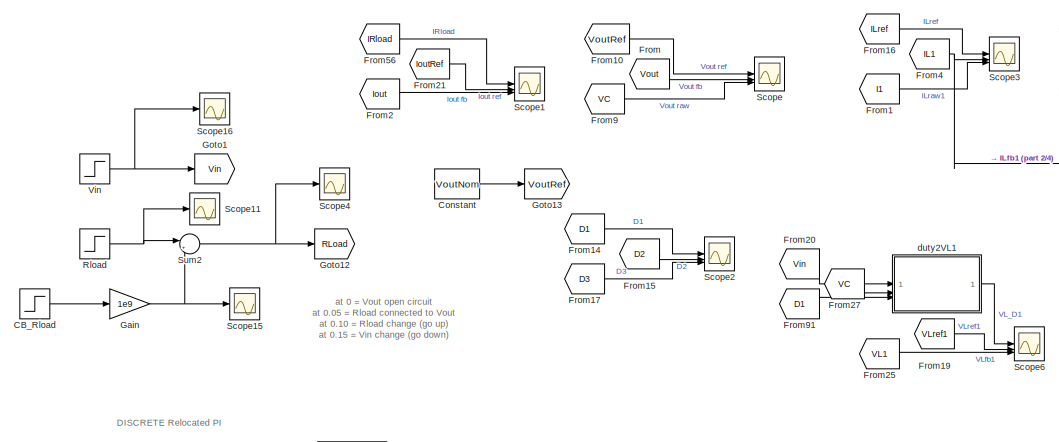
[diagram: root canvas - part 1/4, top center region]
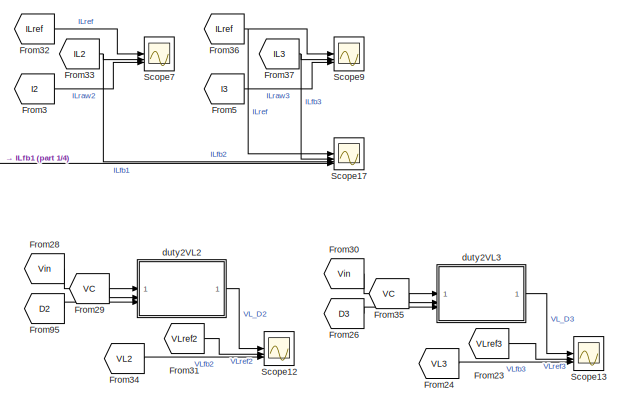
[diagram: root canvas - part 2/4, top right region]
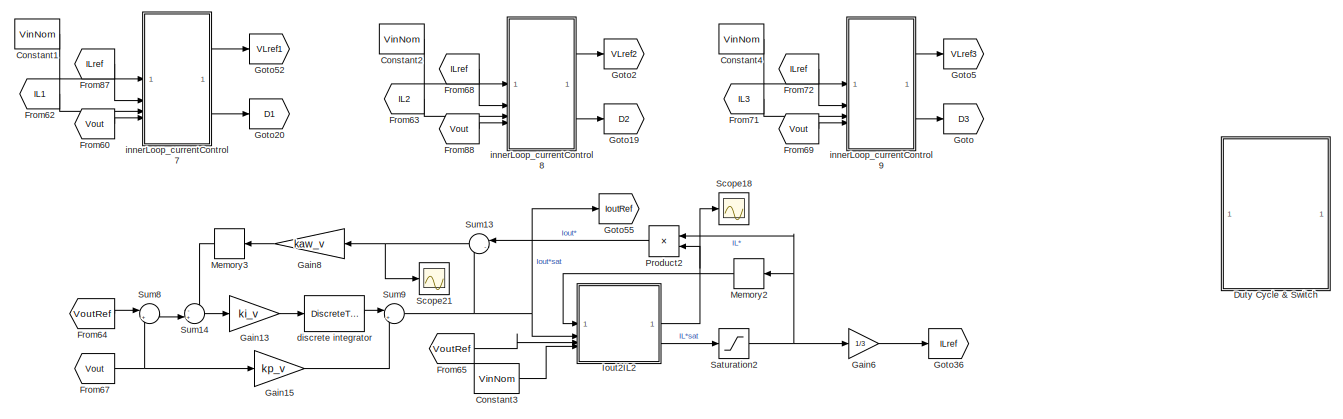
[diagram: root canvas - part 3/4, full width, middle band]
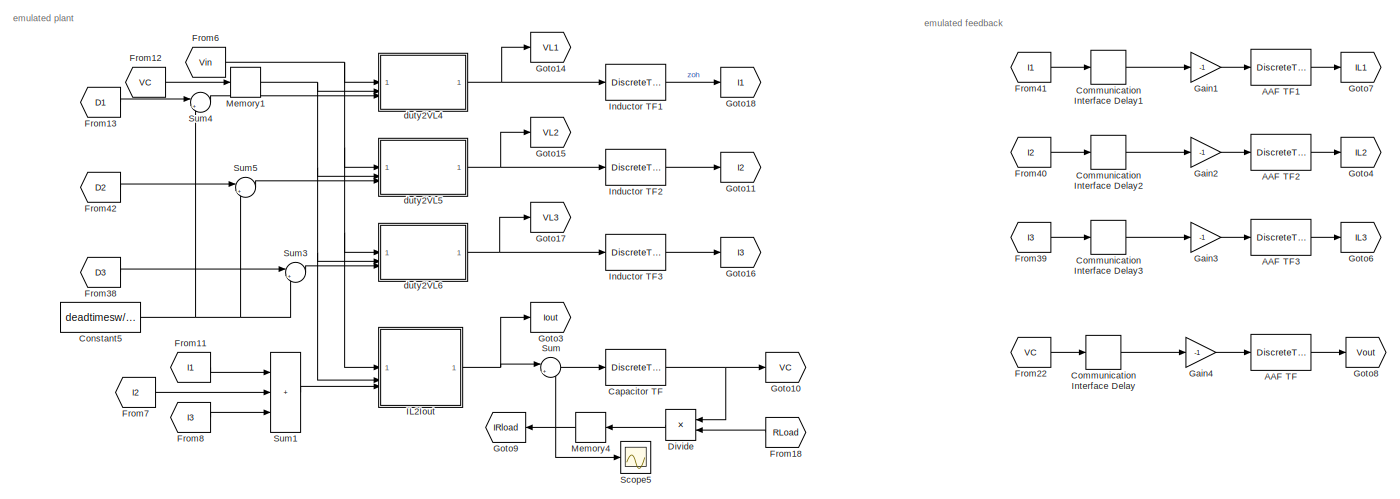
[diagram: root canvas - part 4/4, full width, bottom band]
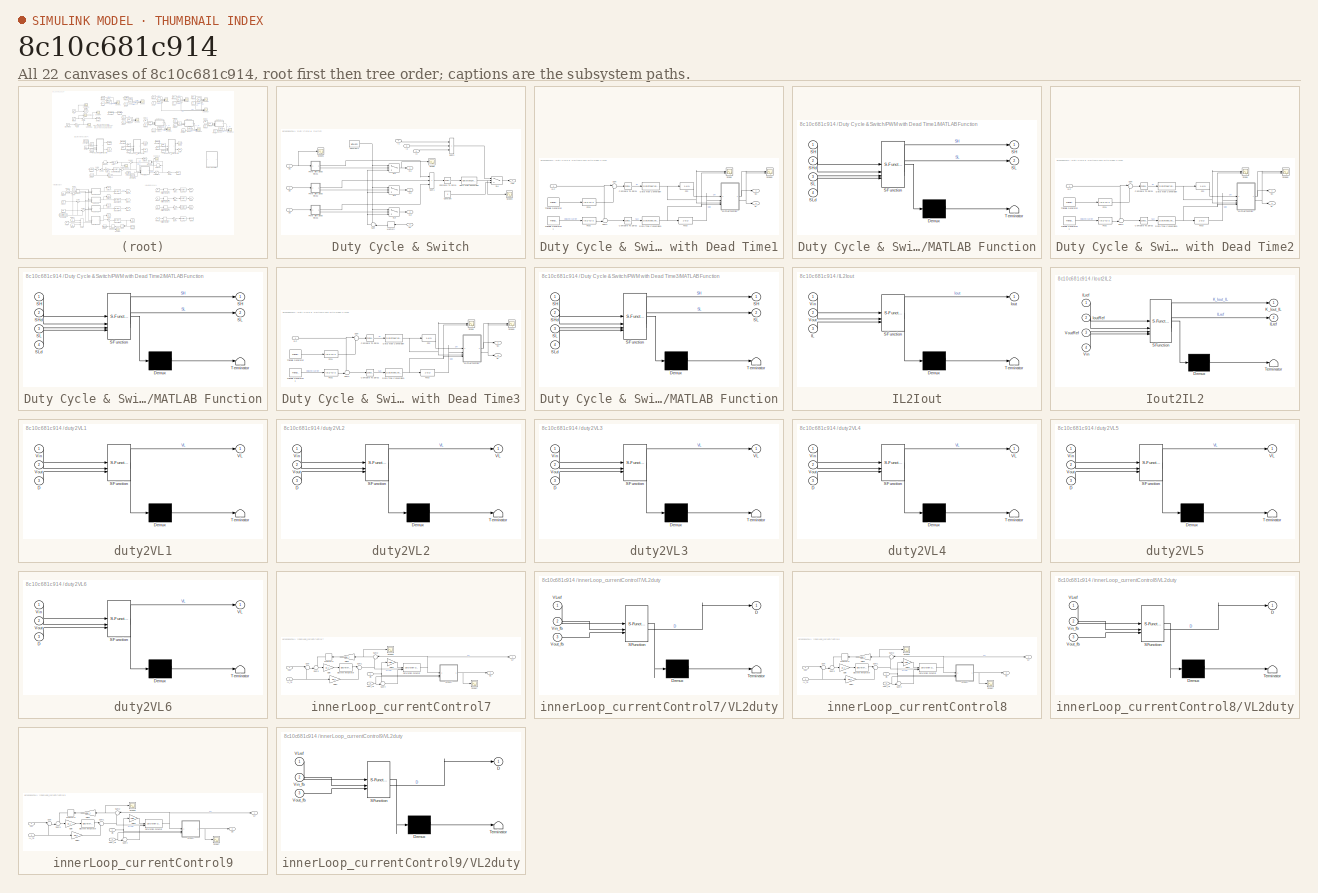
[diagram: thumbnail index - all 22 canvases of the model, root first then tree order]
MODEL slx_8c10c681c914
KIND model
CONFIG AbsTol = auto
CONFIG EnableMultiTasking = off
CONFIG FixedStep = Tsw
CONFIG MaxStep = auto
CONFIG MinStep = auto
CONFIG RelTol = 1e-3
CONFIG SampleTimeConstraint = Unconstrained
CONFIG SolverName = FixedStepDiscrete
CONFIG StartTime = 0.0
CONFIG StopTime = Tsim_outLoop
BLOCK [DiscreteTransferFcn] AAF TF
  Denominator = zden_aaf
  InputPortMap = u0
  Numerator = znum_aaf
BLOCK [DiscreteTransferFcn] AAF TF1
  Denominator = zden_aaf
  InputPortMap = u0
  Numerator = znum_aaf
BLOCK [DiscreteTransferFcn] AAF TF2
  Denominator = zden_aaf
  InputPortMap = u0
  Numerator = znum_aaf
BLOCK [DiscreteTransferFcn] AAF TF3
  Denominator = zden_aaf
  InputPortMap = u0
  Numerator = znum_aaf
BLOCK [Step] CB_Rload
  After = 0
  Before = 1
  SampleTime = 0
  Time = 0.05
BLOCK [DiscreteTransferFcn] Capacitor TF
  Denominator = zden_plant_v
  InputPortMap = u0
  Numerator = znum_plant_v
BLOCK [Delay] Communication Interface Delay
  InputPortMap = u0
BLOCK [Delay] Communication Interface Delay1
  InputPortMap = u0
BLOCK [Delay] Communication Interface Delay2
  InputPortMap = u0
BLOCK [Delay] Communication Interface Delay3
  InputPortMap = u0
BLOCK [Constant] Constant
  Value = VoutNom
BLOCK [Constant] Constant1
  Value = VinNom
BLOCK [Constant] Constant2
  Value = VinNom
BLOCK [Constant] Constant3
  Value = VinNom
BLOCK [Constant] Constant4
  Value = VinNom
BLOCK [Constant] Constant5
  Value = deadtimesw/Tsw
BLOCK [Product] Divide
  Inputs = */
  NameLocation = top
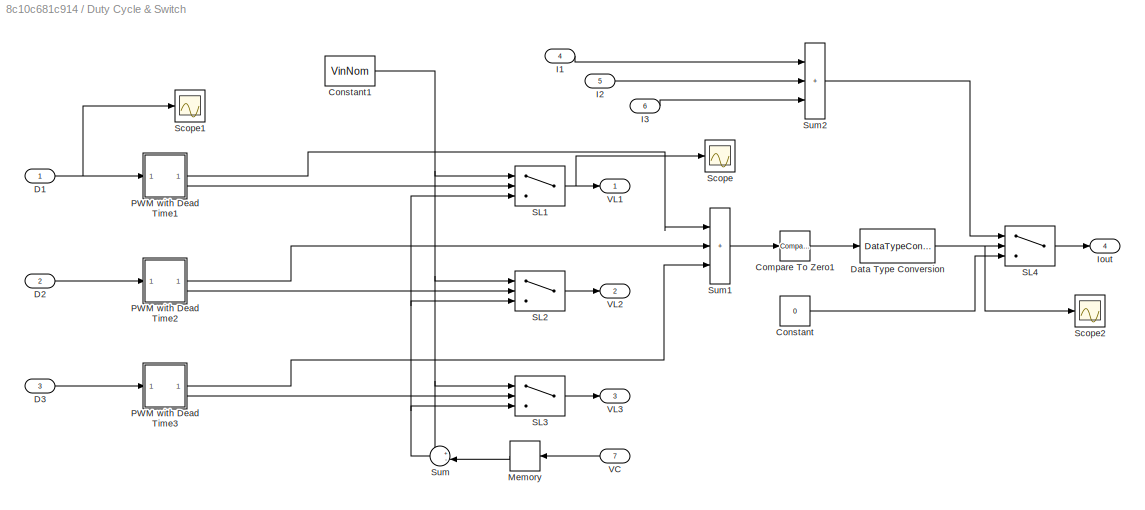
BLOCK [SubSystem] Duty Cycle & Switch
  Commented = on
BLOCK [Reference] Duty Cycle & Switch/Compare To Zero1  REF=simulink/Logic and Bit
Operations/Compare
To Zero
  SourceBlock = simulink/Logic and Bit\nOperations/Compare\nTo Zero
  SourceType = Compare To Zero
BLOCK [Constant] Duty Cycle & Switch/Constant
  Value = 0
BLOCK [Constant] Duty Cycle & Switch/Constant1
  Value = VinNom
BLOCK [Inport] Duty Cycle & Switch/D1
BLOCK [Inport] Duty Cycle & Switch/D2
  Port = 2
BLOCK [Inport] Duty Cycle & Switch/D3
  Port = 3
BLOCK [DataTypeConversion] Duty Cycle & Switch/Data Type Conversion
  RndMeth = Floor
  SaturateOnIntegerOverflow = off
BLOCK [Inport] Duty Cycle & Switch/I1
  Port = 4
BLOCK [Inport] Duty Cycle & Switch/I2
  Port = 5
BLOCK [Inport] Duty Cycle & Switch/I3
  Port = 6
BLOCK [Outport] Duty Cycle & Switch/Iout
  Port = 4
BLOCK [Memory] Duty Cycle & Switch/Memory
  NameLocation = top
BLOCK [SubSystem] Duty Cycle & Switch/PWM with Dead Time1
BLOCK [Reference] Duty Cycle & Switch/PWM with Dead Time1/Compare To Zero1  REF=simulink/Logic and Bit
Operations/Compare
To Zero
  SourceBlock = simulink/Logic and Bit\nOperations/Compare\nTo Zero
  SourceType = Compare To Zero
BLOCK [Reference] Duty Cycle & Switch/PWM with Dead Time1/Compare To Zero2  REF=simulink/Logic and Bit
Operations/Compare
To Zero
  SourceBlock = simulink/Logic and Bit\nOperations/Compare\nTo Zero
  SourceType = Compare To Zero
BLOCK [Inport] Duty Cycle & Switch/PWM with Dead Time1/DC
BLOCK [DataTypeConversion] Duty Cycle & Switch/PWM with Dead Time1/Data Type Conversion
  RndMeth = Floor
  SaturateOnIntegerOverflow = off
BLOCK [DataTypeConversion] Duty Cycle & Switch/PWM with Dead Time1/Data Type Conversion1
  RndMeth = Floor
  SaturateOnIntegerOverflow = off
BLOCK [Fcn] Duty Cycle & Switch/PWM with Dead Time1/Fcn
  Expr = 1-u(1)
BLOCK [Fcn] Duty Cycle & Switch/PWM with Dead Time1/Fcn1
  Expr = (u(1)+1)/2
BLOCK [Fcn] Duty Cycle & Switch/PWM with Dead Time1/Fcn2
  Expr = (u(1)+1)/2
BLOCK [Fcn] Duty Cycle & Switch/PWM with Dead Time1/Fcn3
  Expr = 1-u(1)
BLOCK [SubSystem] Duty Cycle & Switch/PWM with Dead Time1/MATLAB Function
  ErrorFcn = Stateflow.Translate.translate
  PermitHierarchicalResolution = ExplicitOnly
  SFBlockType = MATLAB Function
  TreatAsAtomicUnit = on
BLOCK [Demux] Duty Cycle & Switch/PWM with Dead Time1/MATLAB Function/ Demux 
  Outputs = 1
BLOCK [S-Function] Duty Cycle & Switch/PWM with Dead Time1/MATLAB Function/ SFunction 
  EnableBusSupport = on
  FunctionName = sf_sfun
  PortCounts = [4 3]
  SFcnIsStateOwnerBlock = off
  SFunctionDeploymentMode = off
  Tag = Stateflow S-Function 1
BLOCK [Terminator] Duty Cycle & Switch/PWM with Dead Time1/MATLAB Function/ Terminator 
BLOCK [Outport] Duty Cycle & Switch/PWM with Dead Time1/MATLAB Function/SH
BLOCK [Inport] Duty Cycle & Switch/PWM with Dead Time1/MATLAB Function/SH 
BLOCK [Inport] Duty Cycle & Switch/PWM with Dead Time1/MATLAB Function/SHd
  Port = 2
BLOCK [Outport] Duty Cycle & Switch/PWM with Dead Time1/MATLAB Function/SL
  Port = 2
BLOCK [Inport] Duty Cycle & Switch/PWM with Dead Time1/MATLAB Function/SL 
  Port = 3
BLOCK [Inport] Duty Cycle & Switch/PWM with Dead Time1/MATLAB Function/SLd
  Port = 4
BLOCK [Outport] Duty Cycle & Switch/PWM with Dead Time1/SH
BLOCK [Outport] Duty Cycle & Switch/PWM with Dead Time1/SL
  Port = 2
BLOCK [Scope] Duty Cycle & Switch/PWM with Dead Time1/Scope
  Floating = off
  NameLocation = left
  NumInputPorts = 2
  ScopeSpecificationString = Simulink.scopes.TimeScopeBlockCfg('CurrentConfiguration', extmgr.ConfigurationSet(extmgr.Configuration('Core','General UI',true),extmgr.Configuration('Core','Source UI',true),extmgr.Configuration('Sources','WiredSimulink',true,'DataLoggingVariableName','ScopeData1'),extmgr.Configuration('Visuals','Time Domain',true,'SerializedDisplays',{struct('MinYLimReal','-0.125','MaxYLimReal','1.125','YLabelRe...<+1399ch>  <repeated x3 — deduplicated; at blocks: Scope>
BLOCK [Scope] Duty Cycle & Switch/PWM with Dead Time1/Scope5
  Floating = off
  NumInputPorts = 2
  ScopeSpecificationString = Simulink.scopes.TimeScopeBlockCfg('CurrentConfiguration', extmgr.ConfigurationSet(extmgr.Configuration('Core','General UI',true),extmgr.Configuration('Core','Source UI',true),extmgr.Configuration('Sources','WiredSimulink',true,'DataLoggingVariableName','ScopeData1'),extmgr.Configuration('Visuals','Time Domain',true,'SerializedDisplays',{struct('MinYLimReal','-0.125','MaxYLimReal','1.125','YLabelRe...<+1482ch>  <repeated x3 — deduplicated; at blocks: Scope5>
BLOCK [Sum] Duty Cycle & Switch/PWM with Dead Time1/Sum
  Inputs = |+-
BLOCK [Sum] Duty Cycle & Switch/PWM with Dead Time1/Sum1
  Inputs = +-|
BLOCK [Reference] Duty Cycle & Switch/PWM with Dead Time1/Triangle Generator  REF=spsTriangleGeneratorLib/Triangle
Generator
  LibrarySourceBlock = sps_lib/Sources/Signal Generator Sources/Triangle\nGenerator
  SourceBlock = spsTriangleGeneratorLib/Triangle\nGenerator
  SourceType = Triangle Generator
BLOCK [Reference] Duty Cycle & Switch/PWM with Dead Time1/Triangle Generator1  REF=spsTriangleGeneratorLib/Triangle
Generator
  LibrarySourceBlock = sps_lib/Sources/Signal Generator Sources/Triangle\nGenerator
  SourceBlock = spsTriangleGeneratorLib/Triangle\nGenerator
  SourceType = Triangle Generator
BLOCK [SubSystem] Duty Cycle & Switch/PWM with Dead Time2
BLOCK [Reference] Duty Cycle & Switch/PWM with Dead Time2/Compare To Zero1  REF=simulink/Logic and Bit
Operations/Compare
To Zero
  SourceBlock = simulink/Logic and Bit\nOperations/Compare\nTo Zero
  SourceType = Compare To Zero
BLOCK [Reference] Duty Cycle & Switch/PWM with Dead Time2/Compare To Zero2  REF=simulink/Logic and Bit
Operations/Compare
To Zero
  SourceBlock = simulink/Logic and Bit\nOperations/Compare\nTo Zero
  SourceType = Compare To Zero
BLOCK [Inport] Duty Cycle & Switch/PWM with Dead Time2/DC
BLOCK [DataTypeConversion] Duty Cycle & Switch/PWM with Dead Time2/Data Type Conversion
  RndMeth = Floor
  SaturateOnIntegerOverflow = off
BLOCK [DataTypeConversion] Duty Cycle & Switch/PWM with Dead Time2/Data Type Conversion1
  RndMeth = Floor
  SaturateOnIntegerOverflow = off
BLOCK [Fcn] Duty Cycle & Switch/PWM with Dead Time2/Fcn
  Expr = 1-u(1)
BLOCK [Fcn] Duty Cycle & Switch/PWM with Dead Time2/Fcn1
  Expr = (u(1)+1)/2
BLOCK [Fcn] Duty Cycle & Switch/PWM with Dead Time2/Fcn2
  Expr = (u(1)+1)/2
BLOCK [Fcn] Duty Cycle & Switch/PWM with Dead Time2/Fcn3
  Expr = 1-u(1)
BLOCK [SubSystem] Duty Cycle & Switch/PWM with Dead Time2/MATLAB Function
  ErrorFcn = Stateflow.Translate.translate
  PermitHierarchicalResolution = ExplicitOnly
  SFBlockType = MATLAB Function
  TreatAsAtomicUnit = on
BLOCK [Demux] Duty Cycle & Switch/PWM with Dead Time2/MATLAB Function/ Demux 
  Outputs = 1
BLOCK [S-Function] Duty Cycle & Switch/PWM with Dead Time2/MATLAB Function/ SFunction 
  EnableBusSupport = on
  FunctionName = sf_sfun
  PortCounts = [4 3]
  SFcnIsStateOwnerBlock = off
  SFunctionDeploymentMode = off
  Tag = Stateflow S-Function 2
BLOCK [Terminator] Duty Cycle & Switch/PWM with Dead Time2/MATLAB Function/ Terminator 
BLOCK [Outport] Duty Cycle & Switch/PWM with Dead Time2/MATLAB Function/SH
BLOCK [Inport] Duty Cycle & Switch/PWM with Dead Time2/MATLAB Function/SH 
BLOCK [Inport] Duty Cycle & Switch/PWM with Dead Time2/MATLAB Function/SHd
  Port = 2
BLOCK [Outport] Duty Cycle & Switch/PWM with Dead Time2/MATLAB Function/SL
  Port = 2
BLOCK [Inport] Duty Cycle & Switch/PWM with Dead Time2/MATLAB Function/SL 
  Port = 3
BLOCK [Inport] Duty Cycle & Switch/PWM with Dead Time2/MATLAB Function/SLd
  Port = 4
BLOCK [Outport] Duty Cycle & Switch/PWM with Dead Time2/SH
BLOCK [Outport] Duty Cycle & Switch/PWM with Dead Time2/SL
  Port = 2
BLOCK [Scope] Duty Cycle & Switch/PWM with Dead Time2/Scope
  Floating = off
  NameLocation = left
  NumInputPorts = 2
BLOCK [Scope] Duty Cycle & Switch/PWM with Dead Time2/Scope5
  Floating = off
  NumInputPorts = 2
BLOCK [Sum] Duty Cycle & Switch/PWM with Dead Time2/Sum
  Inputs = |+-
BLOCK [Sum] Duty Cycle & Switch/PWM with Dead Time2/Sum1
  Inputs = +-|
BLOCK [Reference] Duty Cycle & Switch/PWM with Dead Time2/Triangle Generator  REF=spsTriangleGeneratorLib/Triangle
Generator
  LibrarySourceBlock = sps_lib/Sources/Signal Generator Sources/Triangle\nGenerator
  SourceBlock = spsTriangleGeneratorLib/Triangle\nGenerator
  SourceType = Triangle Generator
BLOCK [Reference] Duty Cycle & Switch/PWM with Dead Time2/Triangle Generator1  REF=spsTriangleGeneratorLib/Triangle
Generator
  LibrarySourceBlock = sps_lib/Sources/Signal Generator Sources/Triangle\nGenerator
  SourceBlock = spsTriangleGeneratorLib/Triangle\nGenerator
  SourceType = Triangle Generator
BLOCK [SubSystem] Duty Cycle & Switch/PWM with Dead Time3
BLOCK [Reference] Duty Cycle & Switch/PWM with Dead Time3/Compare To Zero1  REF=simulink/Logic and Bit
Operations/Compare
To Zero
  SourceBlock = simulink/Logic and Bit\nOperations/Compare\nTo Zero
  SourceType = Compare To Zero
BLOCK [Reference] Duty Cycle & Switch/PWM with Dead Time3/Compare To Zero2  REF=simulink/Logic and Bit
Operations/Compare
To Zero
  SourceBlock = simulink/Logic and Bit\nOperations/Compare\nTo Zero
  SourceType = Compare To Zero
BLOCK [Inport] Duty Cycle & Switch/PWM with Dead Time3/DC
BLOCK [DataTypeConversion] Duty Cycle & Switch/PWM with Dead Time3/Data Type Conversion
  RndMeth = Floor
  SaturateOnIntegerOverflow = off
BLOCK [DataTypeConversion] Duty Cycle & Switch/PWM with Dead Time3/Data Type Conversion1
  RndMeth = Floor
  SaturateOnIntegerOverflow = off
BLOCK [Fcn] Duty Cycle & Switch/PWM with Dead Time3/Fcn
  Expr = 1-u(1)
BLOCK [Fcn] Duty Cycle & Switch/PWM with Dead Time3/Fcn1
  Expr = (u(1)+1)/2
BLOCK [Fcn] Duty Cycle & Switch/PWM with Dead Time3/Fcn2
  Expr = (u(1)+1)/2
BLOCK [Fcn] Duty Cycle & Switch/PWM with Dead Time3/Fcn3
  Expr = 1-u(1)
BLOCK [SubSystem] Duty Cycle & Switch/PWM with Dead Time3/MATLAB Function
  ErrorFcn = Stateflow.Translate.translate
  PermitHierarchicalResolution = ExplicitOnly
  SFBlockType = MATLAB Function
  TreatAsAtomicUnit = on
BLOCK [Demux] Duty Cycle & Switch/PWM with Dead Time3/MATLAB Function/ Demux 
  Outputs = 1
BLOCK [S-Function] Duty Cycle & Switch/PWM with Dead Time3/MATLAB Function/ SFunction 
  EnableBusSupport = on
  FunctionName = sf_sfun
  PortCounts = [4 3]
  SFcnIsStateOwnerBlock = off
  SFunctionDeploymentMode = off
  Tag = Stateflow S-Function 3
BLOCK [Terminator] Duty Cycle & Switch/PWM with Dead Time3/MATLAB Function/ Terminator 
BLOCK [Outport] Duty Cycle & Switch/PWM with Dead Time3/MATLAB Function/SH
BLOCK [Inport] Duty Cycle & Switch/PWM with Dead Time3/MATLAB Function/SH 
BLOCK [Inport] Duty Cycle & Switch/PWM with Dead Time3/MATLAB Function/SHd
  Port = 2
BLOCK [Outport] Duty Cycle & Switch/PWM with Dead Time3/MATLAB Function/SL
  Port = 2
BLOCK [Inport] Duty Cycle & Switch/PWM with Dead Time3/MATLAB Function/SL 
  Port = 3
BLOCK [Inport] Duty Cycle & Switch/PWM with Dead Time3/MATLAB Function/SLd
  Port = 4
BLOCK [Outport] Duty Cycle & Switch/PWM with Dead Time3/SH
BLOCK [Outport] Duty Cycle & Switch/PWM with Dead Time3/SL
  Port = 2
BLOCK [Scope] Duty Cycle & Switch/PWM with Dead Time3/Scope
  Floating = off
  NameLocation = left
  NumInputPorts = 2
BLOCK [Scope] Duty Cycle & Switch/PWM with Dead Time3/Scope5
  Floating = off
  NumInputPorts = 2
BLOCK [Sum] Duty Cycle & Switch/PWM with Dead Time3/Sum
  Inputs = |+-
BLOCK [Sum] Duty Cycle & Switch/PWM with Dead Time3/Sum1
  Inputs = +-|
BLOCK [Reference] Duty Cycle & Switch/PWM with Dead Time3/Triangle Generator  REF=spsTriangleGeneratorLib/Triangle
Generator
  LibrarySourceBlock = sps_lib/Sources/Signal Generator Sources/Triangle\nGenerator
  SourceBlock = spsTriangleGeneratorLib/Triangle\nGenerator
  SourceType = Triangle Generator
BLOCK [Reference] Duty Cycle & Switch/PWM with Dead Time3/Triangle Generator1  REF=spsTriangleGeneratorLib/Triangle
Generator
  LibrarySourceBlock = sps_lib/Sources/Signal Generator Sources/Triangle\nGenerator
  SourceBlock = spsTriangleGeneratorLib/Triangle\nGenerator
  SourceType = Triangle Generator
BLOCK [Switch] Duty Cycle & Switch/SL1
  Criteria = u2 > Threshold
  InputSameDT = off
  SaturateOnIntegerOverflow = off
  Threshold = 0.5
BLOCK [Switch] Duty Cycle & Switch/SL2
  Criteria = u2 > Threshold
  InputSameDT = off
  SaturateOnIntegerOverflow = off
  Threshold = 0.5
BLOCK [Switch] Duty Cycle & Switch/SL3
  Criteria = u2 > Threshold
  InputSameDT = off
  SaturateOnIntegerOverflow = off
  Threshold = 0.5
BLOCK [Switch] Duty Cycle & Switch/SL4
  Criteria = u2 > Threshold
  InputSameDT = off
  SaturateOnIntegerOverflow = off
  Threshold = 0.5
BLOCK [Scope] Duty Cycle & Switch/Scope
  Floating = off
  NumInputPorts = 1
  ScopeSpecificationString = Simulink.scopes.TimeScopeBlockCfg('CurrentConfiguration', extmgr.ConfigurationSet(extmgr.Configuration('Core','General UI',true),extmgr.Configuration('Core','Source UI',true),extmgr.Configuration('Sources','WiredSimulink',true,'DataLoggingVariableName','ScopeData3'),extmgr.Configuration('Visuals','Time Domain',true,'SerializedDisplays',{struct('MinYLimReal','-42.46048','MaxYLimReal','38.05116','YL...<+1482ch>
BLOCK [Scope] Duty Cycle & Switch/Scope1
  Floating = off
  NumInputPorts = 1
  ScopeSpecificationString = Simulink.scopes.TimeScopeBlockCfg('CurrentConfiguration', extmgr.ConfigurationSet(extmgr.Configuration('Core','General UI',true),extmgr.Configuration('Core','Source UI',true),extmgr.Configuration('Sources','WiredSimulink',true,'DataLoggingVariableName','ScopeData4'),extmgr.Configuration('Visuals','Time Domain',true,'SerializedDisplays',{struct('MinYLimReal','-0.01933','MaxYLimReal','0.17401','YLab...<+1450ch>
BLOCK [Scope] Duty Cycle & Switch/Scope2
  Floating = off
  NumInputPorts = 1
  ScopeSpecificationString = Simulink.scopes.TimeScopeBlockCfg('CurrentConfiguration', extmgr.ConfigurationSet(extmgr.Configuration('Core','General UI',true),extmgr.Configuration('Core','Source UI',true),extmgr.Configuration('Sources','WiredSimulink',true,'DataLoggingVariableName','ScopeData5'),extmgr.Configuration('Visuals','Time Domain',true,'SerializedDisplays',{struct('MinYLimReal','0.9','MaxYLimReal','1.1','YLabelReal','...<+1459ch>
BLOCK [Sum] Duty Cycle & Switch/Sum
  Inputs = +-|
  NameLocation = top
BLOCK [Sum] Duty Cycle & Switch/Sum1
  IconShape = rectangular
  Inputs = +++
BLOCK [Sum] Duty Cycle & Switch/Sum2
  IconShape = rectangular
  Inputs = +++
BLOCK [Inport] Duty Cycle & Switch/VC
  Port = 7
BLOCK [Outport] Duty Cycle & Switch/VL1
BLOCK [Outport] Duty Cycle & Switch/VL2
  Port = 2
BLOCK [Outport] Duty Cycle & Switch/VL3
  Port = 3
BLOCK [From] From
  GotoTag = Vout
BLOCK [From] From1
  GotoTag = I1
BLOCK [From] From10
  GotoTag = VoutRef
BLOCK [From] From11
  GotoTag = I1
BLOCK [From] From12
  GotoTag = VC
BLOCK [From] From13
  GotoTag = D1
BLOCK [From] From14
  GotoTag = D1
BLOCK [From] From15
  GotoTag = D2
BLOCK [From] From16
  GotoTag = ILref
BLOCK [From] From17
  GotoTag = D3
BLOCK [From] From18
  GotoTag = RLoad
  NameLocation = top
BLOCK [From] From19
  GotoTag = VLref1
BLOCK [From] From2
  GotoTag = Iout
BLOCK [From] From20
  GotoTag = Vin
BLOCK [From] From21
  GotoTag = IoutRef
BLOCK [From] From22
  GotoTag = VC
BLOCK [From] From23
  GotoTag = VLref3
BLOCK [From] From24
  GotoTag = VL3
BLOCK [From] From25
  GotoTag = VL1
BLOCK [From] From26
  GotoTag = D3
BLOCK [From] From27
  GotoTag = VC
BLOCK [From] From28
  GotoTag = Vin
BLOCK [From] From29
  GotoTag = VC
BLOCK [From] From3
  GotoTag = I2
BLOCK [From] From30
  GotoTag = Vin
BLOCK [From] From31
  GotoTag = VLref2
BLOCK [From] From32
  GotoTag = ILref
BLOCK [From] From33
  GotoTag = IL2
BLOCK [From] From34
  GotoTag = VL2
BLOCK [From] From35
  GotoTag = VC
BLOCK [From] From36
  GotoTag = ILref
BLOCK [From] From37
  GotoTag = IL3
BLOCK [From] From38
  GotoTag = D3
BLOCK [From] From39
  GotoTag = I3
BLOCK [From] From4
  GotoTag = IL1
BLOCK [From] From40
  GotoTag = I2
BLOCK [From] From41
  GotoTag = I1
BLOCK [From] From42
  GotoTag = D2
BLOCK [From] From5
  GotoTag = I3
BLOCK [From] From56
  GotoTag = IRload
BLOCK [From] From6
  GotoTag = Vin
BLOCK [From] From60
  GotoTag = Vout
BLOCK [From] From62
  GotoTag = IL1
BLOCK [From] From63
  GotoTag = IL2
BLOCK [From] From64
  GotoTag = VoutRef
BLOCK [From] From65
  GotoTag = VoutRef
BLOCK [From] From67
  GotoTag = Vout
BLOCK [From] From68
  GotoTag = ILref
BLOCK [From] From69
  GotoTag = Vout
BLOCK [From] From7
  GotoTag = I2
BLOCK [From] From71
  GotoTag = IL3
BLOCK [From] From72
  GotoTag = ILref
BLOCK [From] From8
  GotoTag = I3
BLOCK [From] From87
  GotoTag = ILref
BLOCK [From] From88
  GotoTag = Vout
BLOCK [From] From9
  GotoTag = VC
BLOCK [From] From91
  GotoTag = D1
BLOCK [From] From95
  GotoTag = D2
BLOCK [Gain] Gain
  Gain = 1e9
BLOCK [Gain] Gain1
  Gain = -1
BLOCK [Gain] Gain13
  Gain = ki_v
BLOCK [Gain] Gain15
  Gain = kp_v
BLOCK [Gain] Gain2
  Gain = -1
BLOCK [Gain] Gain3
  Gain = -1
BLOCK [Gain] Gain4
  Gain = -1
BLOCK [Gain] Gain6
  Gain = 1/3
BLOCK [Gain] Gain8
  Gain = kaw_v
  NameLocation = top
BLOCK [Goto] Goto
  GotoTag = D3
BLOCK [Goto] Goto1
  GotoTag = Vin
BLOCK [Goto] Goto10
  GotoTag = VC
BLOCK [Goto] Goto11
  GotoTag = I2
BLOCK [Goto] Goto12
  GotoTag = RLoad
BLOCK [Goto] Goto13
  GotoTag = VoutRef
BLOCK [Goto] Goto14
  GotoTag = VL1
BLOCK [Goto] Goto15
  GotoTag = VL2
BLOCK [Goto] Goto16
  GotoTag = I3
BLOCK [Goto] Goto17
  GotoTag = VL3
BLOCK [Goto] Goto18
  GotoTag = I1
BLOCK [Goto] Goto19
  GotoTag = D2
BLOCK [Goto] Goto2
  GotoTag = VLref2
BLOCK [Goto] Goto20
  GotoTag = D1
BLOCK [Goto] Goto3
  GotoTag = Iout
BLOCK [Goto] Goto36
  GotoTag = ILref
BLOCK [Goto] Goto4
  GotoTag = IL2
BLOCK [Goto] Goto5
  GotoTag = VLref3
BLOCK [Goto] Goto52
  GotoTag = VLref1
BLOCK [Goto] Goto55
  GotoTag = IoutRef
BLOCK [Goto] Goto6
  GotoTag = IL3
BLOCK [Goto] Goto7
  GotoTag = IL1
BLOCK [Goto] Goto8
  GotoTag = Vout
BLOCK [Goto] Goto9
  GotoTag = IRload
  NameLocation = top
BLOCK [SubSystem] IL2Iout
  ErrorFcn = Stateflow.Translate.translate
  PermitHierarchicalResolution = ExplicitOnly
  SFBlockType = MATLAB Function
  TreatAsAtomicUnit = on
BLOCK [Demux] IL2Iout/ Demux 
  Outputs = 1
BLOCK [S-Function] IL2Iout/ SFunction 
  EnableBusSupport = on
  FunctionName = sf_sfun
  Parameters = RserL
  PortCounts = [3 2]
  SFcnIsStateOwnerBlock = off
  SFunctionDeploymentMode = off
  Tag = Stateflow S-Function 11
BLOCK [Terminator] IL2Iout/ Terminator 
BLOCK [Inport] IL2Iout/IL
  Port = 3
BLOCK [Outport] IL2Iout/Iout
  VectorParamsAs1DForOutWhenUnconnected = off
BLOCK [Inport] IL2Iout/Vin
BLOCK [Inport] IL2Iout/Vout
  Port = 2
BLOCK [DiscreteTransferFcn] Inductor TF1
  Denominator = zden_plant_i
  InputPortMap = u0
  Numerator = znum_plant_i
BLOCK [DiscreteTransferFcn] Inductor TF2
  Denominator = zden_plant_i
  InputPortMap = u0
  Numerator = znum_plant_i
BLOCK [DiscreteTransferFcn] Inductor TF3
  Denominator = zden_plant_i
  InputPortMap = u0
  Numerator = znum_plant_i
BLOCK [SubSystem] Iout2IL2
  ErrorFcn = Stateflow.Translate.translate
  PermitHierarchicalResolution = ExplicitOnly
  SFBlockType = MATLAB Function
  TreatAsAtomicUnit = on
BLOCK [Demux] Iout2IL2/ Demux 
  Outputs = 1
BLOCK [S-Function] Iout2IL2/ SFunction 
  EnableBusSupport = on
  FunctionName = sf_sfun
  Parameters = RserL
  PortCounts = [4 3]
  SFcnIsStateOwnerBlock = off
  SFunctionDeploymentMode = off
  Tag = Stateflow S-Function 8
BLOCK [Terminator] Iout2IL2/ Terminator 
BLOCK [Outport] Iout2IL2/ILref
  Port = 2
  VectorParamsAs1DForOutWhenUnconnected = off
BLOCK [Inport] Iout2IL2/ILref 
BLOCK [Inport] Iout2IL2/IoutRef
  Port = 2
BLOCK [Outport] Iout2IL2/K_Iout_IL
  VectorParamsAs1DForOutWhenUnconnected = off
BLOCK [Inport] Iout2IL2/Vin
  Port = 4
BLOCK [Inport] Iout2IL2/VoutRef
  Port = 3
BLOCK [Memory] Memory1
  InheritSampleTime = on
BLOCK [Memory] Memory2
  InheritSampleTime = on
  NameLocation = top
BLOCK [Memory] Memory3
  InheritSampleTime = on
  NameLocation = top
BLOCK [Memory] Memory4
  InheritSampleTime = on
  NameLocation = top
BLOCK [Product] Product2
  NameLocation = top
BLOCK [Step] Rload
  After = Rload*2
  Before = Rload
  SampleTime = 0
  Time = 0.10
BLOCK [Saturate] Saturation2
  LowerLimit = -ILmax
  UpperLimit = ILmax
BLOCK [Scope] Scope
  Floating = off
  NumInputPorts = 3
  ScopeSpecificationString = Simulink.scopes.TimeScopeBlockCfg('CurrentConfiguration', extmgr.ConfigurationSet(extmgr.Configuration('Core','General UI',true),extmgr.Configuration('Core','Source UI',true),extmgr.Configuration('Sources','WiredSimulink',true),extmgr.Configuration('Visuals','Time Domain',true,'SerializedDisplays',{struct('MinYLimReal','0','MaxYLimReal','70','YLabelReal','','MinYLimMag','0.00000','MaxYLimMag','219...<+1555ch>
BLOCK [Scope] Scope1
  Floating = off
  NumInputPorts = 3
  ScopeSpecificationString = Simulink.scopes.TimeScopeBlockCfg('CurrentConfiguration', extmgr.ConfigurationSet(extmgr.Configuration('Core','General UI',true),extmgr.Configuration('Core','Source UI',true),extmgr.Configuration('Sources','WiredSimulink',true,'DataLoggingVariableName','ScopeData1'),extmgr.Configuration('Visuals','Time Domain',true,'SerializedDisplays',{struct('MinYLimReal','-42.5099','MaxYLimReal','44.87984','YLa...<+1643ch>
BLOCK [Scope] Scope11
  Floating = off
  NumInputPorts = 1
  ScopeSpecificationString = Simulink.scopes.TimeScopeBlockCfg('CurrentConfiguration', extmgr.ConfigurationSet(extmgr.Configuration('Core','General UI',true),extmgr.Configuration('Core','Source UI',true),extmgr.Configuration('Sources','WiredSimulink',true,'DataLoggingVariableName','ScopeData3'),extmgr.Configuration('Visuals','Time Domain',true,'SerializedDisplays',{struct('MinYLimReal','14.58333','MaxYLimReal','35.41667','YLa...<+1459ch>
BLOCK [Scope] Scope12
  Floating = off
  NumInputPorts = 3
  ScopeSpecificationString = Simulink.scopes.TimeScopeBlockCfg('CurrentConfiguration', extmgr.ConfigurationSet(extmgr.Configuration('Core','General UI',true),extmgr.Configuration('Core','Source UI',true),extmgr.Configuration('Sources','WiredSimulink',true,'DataLoggingVariableName','ScopeData8'),extmgr.Configuration('Visuals','Time Domain',true,'SerializedDisplays',{struct('MinYLimReal','-46.37627','MaxYLimReal','38.48625','YL...<+1520ch>
BLOCK [Scope] Scope13
  Floating = off
  NumInputPorts = 3
  ScopeSpecificationString = Simulink.scopes.TimeScopeBlockCfg('CurrentConfiguration', extmgr.ConfigurationSet(extmgr.Configuration('Core','General UI',true),extmgr.Configuration('Core','Source UI',true),extmgr.Configuration('Sources','WiredSimulink',true,'DataLoggingVariableName','ScopeData9'),extmgr.Configuration('Visuals','Time Domain',true,'SerializedDisplays',{struct('MinYLimReal','-36.17949','MaxYLimReal','37.35328','YL...<+1520ch>
BLOCK [Scope] Scope15
  Floating = off
  NumInputPorts = 1
  ScopeSpecificationString = Simulink.scopes.TimeScopeBlockCfg('CurrentConfiguration', extmgr.ConfigurationSet(extmgr.Configuration('Core','General UI',true),extmgr.Configuration('Core','Source UI',true),extmgr.Configuration('Sources','WiredSimulink',true,'DataLoggingVariableName','ScopeData4'),extmgr.Configuration('Visuals','Time Domain',true,'SerializedDisplays',{struct('MinYLimReal','-125000000.00000','MaxYLimReal','112500...<+1518ch>
BLOCK [Scope] Scope16
  Floating = off
  NumInputPorts = 1
  ScopeSpecificationString = Simulink.scopes.TimeScopeBlockCfg('CurrentConfiguration', extmgr.ConfigurationSet(extmgr.Configuration('Core','General UI',true),extmgr.Configuration('Core','Source UI',true),extmgr.Configuration('Sources','WiredSimulink',true,'DataLoggingVariableName','ScopeData2'),extmgr.Configuration('Visuals','Time Domain',true,'SerializedDisplays',{struct('MinYLimReal','18.75','MaxYLimReal','31.25','YLabelRea...<+1433ch>
BLOCK [Scope] Scope17
  Floating = off
  NumInputPorts = 4
  ScopeSpecificationString = Simulink.scopes.TimeScopeBlockCfg('CurrentConfiguration', extmgr.ConfigurationSet(extmgr.Configuration('Core','General UI',true),extmgr.Configuration('Core','Source UI',true),extmgr.Configuration('Sources','WiredSimulink',true,'DataLoggingVariableName','ScopeData1'),extmgr.Configuration('Visuals','Time Domain',true,'SerializedDisplays',{struct('MinYLimReal','-8','MaxYLimReal','13','YLabelReal','',...<+1616ch>
BLOCK [Scope] Scope18
  Floating = off
  NumInputPorts = 1
  ScopeSpecificationString = Simulink.scopes.TimeScopeBlockCfg('CurrentConfiguration', extmgr.ConfigurationSet(extmgr.Configuration('Core','General UI',true),extmgr.Configuration('Core','Source UI',true),extmgr.Configuration('Sources','WiredSimulink',true,'DataLoggingVariableName','ScopeData1'),extmgr.Configuration('Visuals','Time Domain',true,'SerializedDisplays',{struct('MinYLimReal','1.04374','MaxYLimReal','1.64016','YLabe...<+1374ch>
BLOCK [Scope] Scope2
  Floating = off
  NumInputPorts = 3
  ScopeSpecificationString = Simulink.scopes.TimeScopeBlockCfg('CurrentConfiguration', extmgr.ConfigurationSet(extmgr.Configuration('Core','General UI',true),extmgr.Configuration('Core','Source UI',true),extmgr.Configuration('Sources','WiredSimulink',true,'DataLoggingVariableName','ScopeData1'),extmgr.Configuration('Visuals','Time Domain',true,'SerializedDisplays',{struct('MinYLimReal','-0.1','MaxYLimReal','1','YLabelReal',''...<+1602ch>
BLOCK [Scope] Scope21
  Floating = off
  NumInputPorts = 1
  ScopeSpecificationString = Simulink.scopes.TimeScopeBlockCfg('CurrentConfiguration', extmgr.ConfigurationSet(extmgr.Configuration('Core','General UI',true),extmgr.Configuration('Core','Source UI',true),extmgr.Configuration('Sources','WiredSimulink',true,'DataLoggingVariableName','ScopeData2'),extmgr.Configuration('Visuals','Time Domain',true,'SerializedDisplays',{struct('MinYLimReal','-32.77651','MaxYLimReal','14.99672','YL...<+1578ch>
BLOCK [Scope] Scope3
  Floating = off
  NumInputPorts = 3
  ScopeSpecificationString = Simulink.scopes.TimeScopeBlockCfg('CurrentConfiguration', extmgr.ConfigurationSet(extmgr.Configuration('Core','General UI',true),extmgr.Configuration('Core','Source UI',true),extmgr.Configuration('Sources','WiredSimulink',true,'DataLoggingVariableName','ScopeData3'),extmgr.Configuration('Visuals','Time Domain',true,'SerializedDisplays',{struct('MinYLimReal','-13.83304','MaxYLimReal','24.49732','YL...<+1637ch>
BLOCK [Scope] Scope4
  Floating = off
  NumInputPorts = 1
  ScopeSpecificationString = Simulink.scopes.TimeScopeBlockCfg('CurrentConfiguration', extmgr.ConfigurationSet(extmgr.Configuration('Core','General UI',true),extmgr.Configuration('Core','Source UI',true),extmgr.Configuration('Sources','WiredSimulink',true,'DataLoggingVariableName','ScopeData5'),extmgr.Configuration('Visuals','Time Domain',true,'SerializedDisplays',{struct('MinYLimReal','23.88592','MaxYLimReal','71.0271','YLab...<+1498ch>
BLOCK [Scope] Scope5
  Floating = off
  NumInputPorts = 1
  ScopeSpecificationString = Simulink.scopes.TimeScopeBlockCfg('CurrentConfiguration', extmgr.ConfigurationSet(extmgr.Configuration('Core','General UI',true),extmgr.Configuration('Core','Source UI',true),extmgr.Configuration('Sources','WiredSimulink',true,'DataLoggingVariableName','ScopeData6'),extmgr.Configuration('Visuals','Time Domain',true,'SerializedDisplays',{struct('MinYLimReal','-0.37499','MaxYLimReal','3.37492','YLab...<+1454ch>
BLOCK [Scope] Scope6
  Floating = off
  NumInputPorts = 3
  ScopeSpecificationString = Simulink.scopes.TimeScopeBlockCfg('CurrentConfiguration', extmgr.ConfigurationSet(extmgr.Configuration('Core','General UI',true),extmgr.Configuration('Core','Source UI',true),extmgr.Configuration('Sources','WiredSimulink',true,'DataLoggingVariableName','ScopeData10'),extmgr.Configuration('Visuals','Time Domain',true,'SerializedDisplays',{struct('MinYLimReal','-46.37627','MaxYLimReal','38.48625','Y...<+1548ch>
BLOCK [Scope] Scope7
  Floating = off
  NumInputPorts = 3
  ScopeSpecificationString = Simulink.scopes.TimeScopeBlockCfg('CurrentConfiguration', extmgr.ConfigurationSet(extmgr.Configuration('Core','General UI',true),extmgr.Configuration('Core','Source UI',true),extmgr.Configuration('Sources','WiredSimulink',true,'DataLoggingVariableName','ScopeData2'),extmgr.Configuration('Visuals','Time Domain',true,'SerializedDisplays',{struct('MinYLimReal','-52.0635','MaxYLimReal','155.812','YLab...<+1443ch>
BLOCK [Scope] Scope9
  Floating = off
  NumInputPorts = 3
  ScopeSpecificationString = Simulink.scopes.TimeScopeBlockCfg('CurrentConfiguration', extmgr.ConfigurationSet(extmgr.Configuration('Core','General UI',true),extmgr.Configuration('Core','Source UI',true),extmgr.Configuration('Sources','WiredSimulink',true,'DataLoggingVariableName','ScopeData4'),extmgr.Configuration('Visuals','Time Domain',true,'SerializedDisplays',{struct('MinYLimReal','-52.0635','MaxYLimReal','155.812','YLab...<+1442ch>
BLOCK [Sum] Sum
  Inputs = |+-
BLOCK [Sum] Sum1
  IconShape = rectangular
  Inputs = +++
BLOCK [Sum] Sum13
  Inputs = |-+
  NameLocation = top
BLOCK [Sum] Sum14
  Inputs = -+|
BLOCK [Sum] Sum2
  Inputs = |++
BLOCK [Sum] Sum3
  Inputs = |+-
BLOCK [Sum] Sum4
  Inputs = |+-
BLOCK [Sum] Sum5
  Inputs = |+-
BLOCK [Sum] Sum8
  Inputs = |+-
BLOCK [Sum] Sum9
  Inputs = |+-
BLOCK [Step] Vin
  After = 20
  Before = VinNom
  SampleTime = 0
  Time = 0.15
BLOCK [DiscreteTransferFcn] discrete integrator
  Denominator = zden_Integrator
  InputPortMap = u0
  Numerator = znum_Integrator
BLOCK [SubSystem] duty2VL1
  ErrorFcn = Stateflow.Translate.translate
  NameLocation = top
  PermitHierarchicalResolution = ExplicitOnly
  SFBlockType = MATLAB Function
  TreatAsAtomicUnit = on
BLOCK [Demux] duty2VL1/ Demux 
  Outputs = 1
BLOCK [S-Function] duty2VL1/ SFunction 
  EnableBusSupport = on
  FunctionName = sf_sfun
  PortCounts = [3 2]
  SFcnIsStateOwnerBlock = off
  SFunctionDeploymentMode = off
  Tag = Stateflow S-Function 4
BLOCK [Terminator] duty2VL1/ Terminator 
BLOCK [Inport] duty2VL1/D
  Port = 3
BLOCK [Outport] duty2VL1/VL
  VectorParamsAs1DForOutWhenUnconnected = off
BLOCK [Inport] duty2VL1/Vin
BLOCK [Inport] duty2VL1/Vout
  Port = 2
BLOCK [SubSystem] duty2VL2
  ErrorFcn = Stateflow.Translate.translate
  NameLocation = top
  PermitHierarchicalResolution = ExplicitOnly
  SFBlockType = MATLAB Function
  TreatAsAtomicUnit = on
BLOCK [Demux] duty2VL2/ Demux 
  Outputs = 1
BLOCK [S-Function] duty2VL2/ SFunction 
  EnableBusSupport = on
  FunctionName = sf_sfun
  PortCounts = [3 2]
  SFcnIsStateOwnerBlock = off
  SFunctionDeploymentMode = off
  Tag = Stateflow S-Function 5
BLOCK [Terminator] duty2VL2/ Terminator 
BLOCK [Inport] duty2VL2/D
  Port = 3
BLOCK [Outport] duty2VL2/VL
  VectorParamsAs1DForOutWhenUnconnected = off
BLOCK [Inport] duty2VL2/Vin
BLOCK [Inport] duty2VL2/Vout
  Port = 2
BLOCK [SubSystem] duty2VL3
  ErrorFcn = Stateflow.Translate.translate
  NameLocation = top
  PermitHierarchicalResolution = ExplicitOnly
  SFBlockType = MATLAB Function
  TreatAsAtomicUnit = on
BLOCK [Demux] duty2VL3/ Demux 
  Outputs = 1
BLOCK [S-Function] duty2VL3/ SFunction 
  EnableBusSupport = on
  FunctionName = sf_sfun
  PortCounts = [3 2]
  SFcnIsStateOwnerBlock = off
  SFunctionDeploymentMode = off
  Tag = Stateflow S-Function 6
BLOCK [Terminator] duty2VL3/ Terminator 
BLOCK [Inport] duty2VL3/D
  Port = 3
BLOCK [Outport] duty2VL3/VL
  VectorParamsAs1DForOutWhenUnconnected = off
BLOCK [Inport] duty2VL3/Vin
BLOCK [Inport] duty2VL3/Vout
  Port = 2
BLOCK [SubSystem] duty2VL4
  ErrorFcn = Stateflow.Translate.translate
  NameLocation = top
  PermitHierarchicalResolution = ExplicitOnly
  SFBlockType = MATLAB Function
  TreatAsAtomicUnit = on
BLOCK [Demux] duty2VL4/ Demux 
  Outputs = 1
BLOCK [S-Function] duty2VL4/ SFunction 
  EnableBusSupport = on
  FunctionName = sf_sfun
  PortCounts = [3 2]
  SFcnIsStateOwnerBlock = off
  SFunctionDeploymentMode = off
  Tag = Stateflow S-Function 7
BLOCK [Terminator] duty2VL4/ Terminator 
BLOCK [Inport] duty2VL4/D
  Port = 3
BLOCK [Outport] duty2VL4/VL
  VectorParamsAs1DForOutWhenUnconnected = off
BLOCK [Inport] duty2VL4/Vin
BLOCK [Inport] duty2VL4/Vout
  Port = 2
BLOCK [SubSystem] duty2VL5
  ErrorFcn = Stateflow.Translate.translate
  NameLocation = top
  PermitHierarchicalResolution = ExplicitOnly
  SFBlockType = MATLAB Function
  TreatAsAtomicUnit = on
BLOCK [Demux] duty2VL5/ Demux 
  Outputs = 1
BLOCK [S-Function] duty2VL5/ SFunction 
  EnableBusSupport = on
  FunctionName = sf_sfun
  PortCounts = [3 2]
  SFcnIsStateOwnerBlock = off
  SFunctionDeploymentMode = off
  Tag = Stateflow S-Function 9
BLOCK [Terminator] duty2VL5/ Terminator 
BLOCK [Inport] duty2VL5/D
  Port = 3
BLOCK [Outport] duty2VL5/VL
  VectorParamsAs1DForOutWhenUnconnected = off
BLOCK [Inport] duty2VL5/Vin
BLOCK [Inport] duty2VL5/Vout
  Port = 2
BLOCK [SubSystem] duty2VL6
  ErrorFcn = Stateflow.Translate.translate
  NameLocation = top
  PermitHierarchicalResolution = ExplicitOnly
  SFBlockType = MATLAB Function
  TreatAsAtomicUnit = on
BLOCK [Demux] duty2VL6/ Demux 
  Outputs = 1
BLOCK [S-Function] duty2VL6/ SFunction 
  EnableBusSupport = on
  FunctionName = sf_sfun
  PortCounts = [3 2]
  SFcnIsStateOwnerBlock = off
  SFunctionDeploymentMode = off
  Tag = Stateflow S-Function 10
BLOCK [Terminator] duty2VL6/ Terminator 
BLOCK [Inport] duty2VL6/D
  Port = 3
BLOCK [Outport] duty2VL6/VL
  VectorParamsAs1DForOutWhenUnconnected = off
BLOCK [Inport] duty2VL6/Vin
BLOCK [Inport] duty2VL6/Vout
  Port = 2
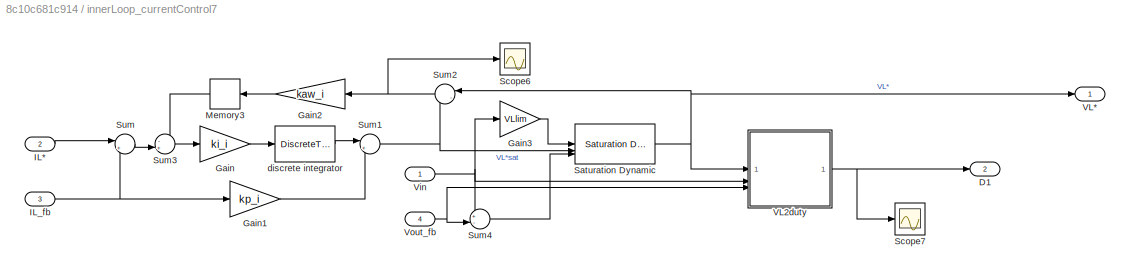
BLOCK [SubSystem] innerLoop_currentControl7
BLOCK [Outport] innerLoop_currentControl7/D1
  Port = 2
BLOCK [Gain] innerLoop_currentControl7/Gain
  Gain = ki_i
BLOCK [Gain] innerLoop_currentControl7/Gain1
  Gain = kp_i
BLOCK [Gain] innerLoop_currentControl7/Gain2
  Gain = kaw_i
  NameLocation = top
BLOCK [Gain] innerLoop_currentControl7/Gain3
  Gain = VLlim
BLOCK [Inport] innerLoop_currentControl7/IL*
  Port = 2
BLOCK [Inport] innerLoop_currentControl7/IL_fb
  Port = 3
BLOCK [Memory] innerLoop_currentControl7/Memory3
  InheritSampleTime = on
  NameLocation = top
BLOCK [Reference] innerLoop_currentControl7/Saturation Dynamic  REF=simulink/Discontinuities/Saturation
Dynamic
  SourceBlock = simulink/Discontinuities/Saturation\nDynamic
  SourceType = Saturation Dynamic
BLOCK [Scope] innerLoop_currentControl7/Scope6
  Floating = off
  NumInputPorts = 1
  ScopeSpecificationString = Simulink.scopes.TimeScopeBlockCfg('CurrentConfiguration', extmgr.ConfigurationSet(extmgr.Configuration('Core','General UI',true),extmgr.Configuration('Core','Source UI',true),extmgr.Configuration('Sources','WiredSimulink',true,'DataLoggingVariableName','ScopeData2'),extmgr.Configuration('Visuals','Time Domain',true,'SerializedDisplays',{struct('MinYLimReal','-67.46443','MaxYLimReal','7.49605','YLa...<+1367ch>
BLOCK [Scope] innerLoop_currentControl7/Scope7
  Floating = off
  NumInputPorts = 1
  ScopeSpecificationString = Simulink.scopes.TimeScopeBlockCfg('CurrentConfiguration', extmgr.ConfigurationSet(extmgr.Configuration('Core','General UI',true),extmgr.Configuration('Core','Source UI',true),extmgr.Configuration('Sources','WiredSimulink',true,'DataLoggingVariableName','ScopeData2'),extmgr.Configuration('Visuals','Time Domain',true,'SerializedDisplays',{struct('MinYLimReal','-0.10576','MaxYLimReal','0.95182','YLab...<+1455ch>
BLOCK [Sum] innerLoop_currentControl7/Sum
  Inputs = |+-
BLOCK [Sum] innerLoop_currentControl7/Sum1
  Inputs = |+-
BLOCK [Sum] innerLoop_currentControl7/Sum2
  Inputs = |-+
  NameLocation = top
BLOCK [Sum] innerLoop_currentControl7/Sum3
  Inputs = -+|
BLOCK [Sum] innerLoop_currentControl7/Sum4
  Inputs = +-|
BLOCK [Outport] innerLoop_currentControl7/VL*
BLOCK [SubSystem] innerLoop_currentControl7/VL2duty
  ErrorFcn = Stateflow.Translate.translate
  PermitHierarchicalResolution = ExplicitOnly
  SFBlockType = MATLAB Function
  TreatAsAtomicUnit = on
BLOCK [Demux] innerLoop_currentControl7/VL2duty/ Demux 
  Outputs = 1
BLOCK [S-Function] innerLoop_currentControl7/VL2duty/ SFunction 
  EnableBusSupport = on
  FunctionName = sf_sfun
  PortCounts = [3 2]
  SFcnIsStateOwnerBlock = off
  SFunctionDeploymentMode = off
  Tag = Stateflow S-Function 24
BLOCK [Terminator] innerLoop_currentControl7/VL2duty/ Terminator 
BLOCK [Outport] innerLoop_currentControl7/VL2duty/D
  VectorParamsAs1DForOutWhenUnconnected = off
BLOCK [Inport] innerLoop_currentControl7/VL2duty/VLref
BLOCK [Inport] innerLoop_currentControl7/VL2duty/Vin_fb
  Port = 2
BLOCK [Inport] innerLoop_currentControl7/VL2duty/Vout_fb
  Port = 3
BLOCK [Inport] innerLoop_currentControl7/Vin
BLOCK [Inport] innerLoop_currentControl7/Vout_fb
  Port = 4
BLOCK [DiscreteTransferFcn] innerLoop_currentControl7/discrete integrator
  Denominator = zden_Integrator
  InputPortMap = u0
  Numerator = znum_Integrator
BLOCK [SubSystem] innerLoop_currentControl8
BLOCK [Outport] innerLoop_currentControl8/D2
  Port = 2
BLOCK [Gain] innerLoop_currentControl8/Gain
  Gain = ki_i
BLOCK [Gain] innerLoop_currentControl8/Gain1
  Gain = kp_i
BLOCK [Gain] innerLoop_currentControl8/Gain2
  Gain = kaw_i
  NameLocation = top
BLOCK [Gain] innerLoop_currentControl8/Gain3
  Gain = VLlim
BLOCK [Inport] innerLoop_currentControl8/IL*
  Port = 2
BLOCK [Inport] innerLoop_currentControl8/IL_fb
  Port = 3
BLOCK [Memory] innerLoop_currentControl8/Memory3
  InheritSampleTime = on
  NameLocation = top
BLOCK [Reference] innerLoop_currentControl8/Saturation Dynamic  REF=simulink/Discontinuities/Saturation
Dynamic
  SourceBlock = simulink/Discontinuities/Saturation\nDynamic
  SourceType = Saturation Dynamic
BLOCK [Scope] innerLoop_currentControl8/Scope6
  Floating = off
  NumInputPorts = 1
  ScopeSpecificationString = Simulink.scopes.TimeScopeBlockCfg('CurrentConfiguration', extmgr.ConfigurationSet(extmgr.Configuration('Core','General UI',true),extmgr.Configuration('Core','Source UI',true),extmgr.Configuration('Sources','WiredSimulink',true,'DataLoggingVariableName','ScopeData2'),extmgr.Configuration('Visuals','Time Domain',true,'SerializedDisplays',{struct('MinYLimReal','-417.1238','MaxYLimReal','46.38546','YL...<+1371ch>
BLOCK [Scope] innerLoop_currentControl8/Scope7
  Floating = off
  NumInputPorts = 1
  ScopeSpecificationString = Simulink.scopes.TimeScopeBlockCfg('CurrentConfiguration', extmgr.ConfigurationSet(extmgr.Configuration('Core','General UI',true),extmgr.Configuration('Core','Source UI',true),extmgr.Configuration('Sources','WiredSimulink',true,'DataLoggingVariableName','ScopeData2'),extmgr.Configuration('Visuals','Time Domain',true,'SerializedDisplays',{struct('MinYLimReal','-1.00000','MaxYLimReal','1.00000','YLab...<+1366ch>
BLOCK [Sum] innerLoop_currentControl8/Sum
  Inputs = |+-
BLOCK [Sum] innerLoop_currentControl8/Sum1
  Inputs = |+-
BLOCK [Sum] innerLoop_currentControl8/Sum2
  Inputs = |-+
  NameLocation = top
BLOCK [Sum] innerLoop_currentControl8/Sum3
  Inputs = -+|
BLOCK [Sum] innerLoop_currentControl8/Sum4
  Inputs = +-|
BLOCK [Outport] innerLoop_currentControl8/VL*
BLOCK [SubSystem] innerLoop_currentControl8/VL2duty
  ErrorFcn = Stateflow.Translate.translate
  PermitHierarchicalResolution = ExplicitOnly
  SFBlockType = MATLAB Function
  TreatAsAtomicUnit = on
BLOCK [Demux] innerLoop_currentControl8/VL2duty/ Demux 
  Outputs = 1
BLOCK [S-Function] innerLoop_currentControl8/VL2duty/ SFunction 
  EnableBusSupport = on
  FunctionName = sf_sfun
  PortCounts = [3 2]
  SFcnIsStateOwnerBlock = off
  SFunctionDeploymentMode = off
  Tag = Stateflow S-Function 26
BLOCK [Terminator] innerLoop_currentControl8/VL2duty/ Terminator 
BLOCK [Outport] innerLoop_currentControl8/VL2duty/D
  VectorParamsAs1DForOutWhenUnconnected = off
BLOCK [Inport] innerLoop_currentControl8/VL2duty/VLref
BLOCK [Inport] innerLoop_currentControl8/VL2duty/Vin_fb
  Port = 2
BLOCK [Inport] innerLoop_currentControl8/VL2duty/Vout_fb
  Port = 3
BLOCK [Inport] innerLoop_currentControl8/Vin
BLOCK [Inport] innerLoop_currentControl8/Vout_fb
  Port = 4
BLOCK [DiscreteTransferFcn] innerLoop_currentControl8/discrete integrator
  Denominator = zden_Integrator
  InputPortMap = u0
  Numerator = znum_Integrator
BLOCK [SubSystem] innerLoop_currentControl9
BLOCK [Outport] innerLoop_currentControl9/D3
  Port = 2
BLOCK [Gain] innerLoop_currentControl9/Gain
  Gain = ki_i
BLOCK [Gain] innerLoop_currentControl9/Gain1
  Gain = kp_i
BLOCK [Gain] innerLoop_currentControl9/Gain2
  Gain = kaw_i
  NameLocation = top
BLOCK [Gain] innerLoop_currentControl9/Gain3
  Gain = VLlim
BLOCK [Inport] innerLoop_currentControl9/IL*
  Port = 2
BLOCK [Inport] innerLoop_currentControl9/IL_fb
  Port = 3
BLOCK [Memory] innerLoop_currentControl9/Memory3
  InheritSampleTime = on
  NameLocation = top
BLOCK [Reference] innerLoop_currentControl9/Saturation Dynamic  REF=simulink/Discontinuities/Saturation
Dynamic
  SourceBlock = simulink/Discontinuities/Saturation\nDynamic
  SourceType = Saturation Dynamic
BLOCK [Scope] innerLoop_currentControl9/Scope6
  Floating = off
  NumInputPorts = 1
  ScopeSpecificationString = Simulink.scopes.TimeScopeBlockCfg('CurrentConfiguration', extmgr.ConfigurationSet(extmgr.Configuration('Core','General UI',true),extmgr.Configuration('Core','Source UI',true),extmgr.Configuration('Sources','WiredSimulink',true,'DataLoggingVariableName','ScopeData2'),extmgr.Configuration('Visuals','Time Domain',true,'SerializedDisplays',{struct('MinYLimReal','-1.00000','MaxYLimReal','1.00000','YLab...<+1363ch>
BLOCK [Scope] innerLoop_currentControl9/Scope7
  Floating = off
  NumInputPorts = 1
  ScopeSpecificationString = Simulink.scopes.TimeScopeBlockCfg('CurrentConfiguration', extmgr.ConfigurationSet(extmgr.Configuration('Core','General UI',true),extmgr.Configuration('Core','Source UI',true),extmgr.Configuration('Sources','WiredSimulink',true,'DataLoggingVariableName','ScopeData2'),extmgr.Configuration('Visuals','Time Domain',true,'SerializedDisplays',{struct('MinYLimReal','-1.00000','MaxYLimReal','1.00000','YLab...<+1366ch>
BLOCK [Sum] innerLoop_currentControl9/Sum
  Inputs = |+-
BLOCK [Sum] innerLoop_currentControl9/Sum1
  Inputs = |+-
BLOCK [Sum] innerLoop_currentControl9/Sum2
  Inputs = |-+
  NameLocation = top
BLOCK [Sum] innerLoop_currentControl9/Sum3
  Inputs = -+|
BLOCK [Sum] innerLoop_currentControl9/Sum4
  Inputs = +-|
BLOCK [Outport] innerLoop_currentControl9/VL*
BLOCK [SubSystem] innerLoop_currentControl9/VL2duty
  ErrorFcn = Stateflow.Translate.translate
  PermitHierarchicalResolution = ExplicitOnly
  SFBlockType = MATLAB Function
  TreatAsAtomicUnit = on
BLOCK [Demux] innerLoop_currentControl9/VL2duty/ Demux 
  Outputs = 1
BLOCK [S-Function] innerLoop_currentControl9/VL2duty/ SFunction 
  EnableBusSupport = on
  FunctionName = sf_sfun
  PortCounts = [3 2]
  SFcnIsStateOwnerBlock = off
  SFunctionDeploymentMode = off
  Tag = Stateflow S-Function 28
BLOCK [Terminator] innerLoop_currentControl9/VL2duty/ Terminator 
BLOCK [Outport] innerLoop_currentControl9/VL2duty/D
  VectorParamsAs1DForOutWhenUnconnected = off
BLOCK [Inport] innerLoop_currentControl9/VL2duty/VLref
BLOCK [Inport] innerLoop_currentControl9/VL2duty/Vin_fb
  Port = 2
BLOCK [Inport] innerLoop_currentControl9/VL2duty/Vout_fb
  Port = 3
BLOCK [Inport] innerLoop_currentControl9/Vin
BLOCK [Inport] innerLoop_currentControl9/Vout_fb
  Port = 4
BLOCK [DiscreteTransferFcn] innerLoop_currentControl9/discrete integrator
  Denominator = zden_Integrator
  InputPortMap = u0
  Numerator = znum_Integrator
ANNOTATION (root): DISCRETE Relocated PI
ANNOTATION (root): at 0 = Vout open circuit at 0.05 = Rload connected to Vout at 0.10 = Rload change (go up) at 0.15 = Vin change (go down)
ANNOTATION (root): emulated feedback
ANNOTATION (root): emulated plant
LINE AAF TF1:1 -> Goto7:1
LINE AAF TF2:1 -> Goto4:1
LINE AAF TF3:1 -> Goto6:1
LINE AAF TF:1 -> Goto8:1
LINE CB_Rload:1 -> Gain:1
NET Capacitor TF:1 -> Divide:1, Goto10:1
LINE Communication Interface Delay1:1 -> Gain1:1
LINE Communication Interface Delay2:1 -> Gain2:1
LINE Communication Interface Delay3:1 -> Gain3:1
LINE Communication Interface Delay:1 -> Gain4:1
LINE Constant1:1 -> innerLoop_currentControl7:1
LINE Constant2:1 -> innerLoop_currentControl8:1
LINE Constant3:1 -> Iout2IL2:4
LINE Constant4:1 -> innerLoop_currentControl9:1
NET Constant5:1 -> Sum3:2, Sum4:2, Sum5:2
LINE Constant:1 -> Goto13:1
LINE Divide:1 -> Memory4:1
LINE Duty Cycle & Switch/Compare To Zero1:1 -> Duty Cycle & Switch/Data Type Conversion:1
NET Duty Cycle & Switch/Constant1:1 -> Duty Cycle & Switch/SL1:1, Duty Cycle & Switch/SL2:1, Duty Cycle & Switch/SL3:1, Duty Cycle & Switch/Sum:1
LINE Duty Cycle & Switch/Constant:1 -> Duty Cycle & Switch/SL4:3
NET Duty Cycle & Switch/D1:1 -> Duty Cycle & Switch/PWM with Dead Time1:1, Duty Cycle & Switch/Scope1:1
LINE Duty Cycle & Switch/D2:1 -> Duty Cycle & Switch/PWM with Dead Time2:1
LINE Duty Cycle & Switch/D3:1 -> Duty Cycle & Switch/PWM with Dead Time3:1
NET Duty Cycle & Switch/Data Type Conversion:1 -> Duty Cycle & Switch/SL4:2, Duty Cycle & Switch/Scope2:1
LINE Duty Cycle & Switch/I1:1 -> Duty Cycle & Switch/Sum2:1
LINE Duty Cycle & Switch/I2:1 -> Duty Cycle & Switch/Sum2:2
LINE Duty Cycle & Switch/I3:1 -> Duty Cycle & Switch/Sum2:3
LINE Duty Cycle & Switch/Memory:1 -> Duty Cycle & Switch/Sum:2
LINE Duty Cycle & Switch/PWM with Dead Time1/Compare To Zero1:1 -> Duty Cycle & Switch/PWM with Dead Time1/Data Type Conversion:1
LINE Duty Cycle & Switch/PWM with Dead Time1/Compare To Zero2:1 -> Duty Cycle & Switch/PWM with Dead Time1/Data Type Conversion1:1
NET Duty Cycle & Switch/PWM with Dead Time1/DC:1 -> Duty Cycle & Switch/PWM with Dead Time1/Sum1:1, Duty Cycle & Switch/PWM with Dead Time1/Sum:1
NET Duty Cycle & Switch/PWM with Dead Time1/Data Type Conversion1:1 -> Duty Cycle & Switch/PWM with Dead Time1/Fcn3:1, Duty Cycle & Switch/PWM with Dead Time1/MATLAB Function:4, Duty Cycle & Switch/PWM with Dead Time1/Scope:2
NET Duty Cycle & Switch/PWM with Dead Time1/Data Type Conversion:1 -> Duty Cycle & Switch/PWM with Dead Time1/Fcn:1, Duty Cycle & Switch/PWM with Dead Time1/MATLAB Function:3, Duty Cycle & Switch/PWM with Dead Time1/Scope:1
LINE Duty Cycle & Switch/PWM with Dead Time1/Fcn1:1 -> Duty Cycle & Switch/PWM with Dead Time1/Sum:2
LINE Duty Cycle & Switch/PWM with Dead Time1/Fcn2:1 -> Duty Cycle & Switch/PWM with Dead Time1/Sum1:2
LINE Duty Cycle & Switch/PWM with Dead Time1/Fcn3:1 -> Duty Cycle & Switch/PWM with Dead Time1/MATLAB Function:2
LINE Duty Cycle & Switch/PWM with Dead Time1/Fcn:1 -> Duty Cycle & Switch/PWM with Dead Time1/MATLAB Function:1
NET Duty Cycle & Switch/PWM with Dead Time1/MATLAB Function:1 -> Duty Cycle & Switch/PWM with Dead Time1/SH:1, Duty Cycle & Switch/PWM with Dead Time1/Scope5:1
NET Duty Cycle & Switch/PWM with Dead Time1/MATLAB Function:2 -> Duty Cycle & Switch/PWM with Dead Time1/SL:1, Duty Cycle & Switch/PWM with Dead Time1/Scope5:2
LINE Duty Cycle & Switch/PWM with Dead Time1/Sum1:1 -> Duty Cycle & Switch/PWM with Dead Time1/Compare To Zero2:1
LINE Duty Cycle & Switch/PWM with Dead Time1/Sum:1 -> Duty Cycle & Switch/PWM with Dead Time1/Compare To Zero1:1
LINE Duty Cycle & Switch/PWM with Dead Time1/Triangle Generator1:1 -> Duty Cycle & Switch/PWM with Dead Time1/Fcn2:1
LINE Duty Cycle & Switch/PWM with Dead Time1/Triangle Generator:1 -> Duty Cycle & Switch/PWM with Dead Time1/Fcn1:1
LINE Duty Cycle & Switch/PWM with Dead Time1:1 -> Duty Cycle & Switch/Sum1:1
LINE Duty Cycle & Switch/PWM with Dead Time1:2 -> Duty Cycle & Switch/SL1:2
LINE Duty Cycle & Switch/PWM with Dead Time2/Compare To Zero1:1 -> Duty Cycle & Switch/PWM with Dead Time2/Data Type Conversion:1
LINE Duty Cycle & Switch/PWM with Dead Time2/Compare To Zero2:1 -> Duty Cycle & Switch/PWM with Dead Time2/Data Type Conversion1:1
NET Duty Cycle & Switch/PWM with Dead Time2/DC:1 -> Duty Cycle & Switch/PWM with Dead Time2/Sum1:1, Duty Cycle & Switch/PWM with Dead Time2/Sum:1
NET Duty Cycle & Switch/PWM with Dead Time2/Data Type Conversion1:1 -> Duty Cycle & Switch/PWM with Dead Time2/Fcn3:1, Duty Cycle & Switch/PWM with Dead Time2/MATLAB Function:4, Duty Cycle & Switch/PWM with Dead Time2/Scope:2
NET Duty Cycle & Switch/PWM with Dead Time2/Data Type Conversion:1 -> Duty Cycle & Switch/PWM with Dead Time2/Fcn:1, Duty Cycle & Switch/PWM with Dead Time2/MATLAB Function:3, Duty Cycle & Switch/PWM with Dead Time2/Scope:1
LINE Duty Cycle & Switch/PWM with Dead Time2/Fcn1:1 -> Duty Cycle & Switch/PWM with Dead Time2/Sum:2
LINE Duty Cycle & Switch/PWM with Dead Time2/Fcn2:1 -> Duty Cycle & Switch/PWM with Dead Time2/Sum1:2
LINE Duty Cycle & Switch/PWM with Dead Time2/Fcn3:1 -> Duty Cycle & Switch/PWM with Dead Time2/MATLAB Function:2
LINE Duty Cycle & Switch/PWM with Dead Time2/Fcn:1 -> Duty Cycle & Switch/PWM with Dead Time2/MATLAB Function:1
NET Duty Cycle & Switch/PWM with Dead Time2/MATLAB Function:1 -> Duty Cycle & Switch/PWM with Dead Time2/SH:1, Duty Cycle & Switch/PWM with Dead Time2/Scope5:1
NET Duty Cycle & Switch/PWM with Dead Time2/MATLAB Function:2 -> Duty Cycle & Switch/PWM with Dead Time2/SL:1, Duty Cycle & Switch/PWM with Dead Time2/Scope5:2
LINE Duty Cycle & Switch/PWM with Dead Time2/Sum1:1 -> Duty Cycle & Switch/PWM with Dead Time2/Compare To Zero2:1
LINE Duty Cycle & Switch/PWM with Dead Time2/Sum:1 -> Duty Cycle & Switch/PWM with Dead Time2/Compare To Zero1:1
LINE Duty Cycle & Switch/PWM with Dead Time2/Triangle Generator1:1 -> Duty Cycle & Switch/PWM with Dead Time2/Fcn2:1
LINE Duty Cycle & Switch/PWM with Dead Time2/Triangle Generator:1 -> Duty Cycle & Switch/PWM with Dead Time2/Fcn1:1
LINE Duty Cycle & Switch/PWM with Dead Time2:1 -> Duty Cycle & Switch/Sum1:2
LINE Duty Cycle & Switch/PWM with Dead Time2:2 -> Duty Cycle & Switch/SL2:2
LINE Duty Cycle & Switch/PWM with Dead Time3/Compare To Zero1:1 -> Duty Cycle & Switch/PWM with Dead Time3/Data Type Conversion:1
LINE Duty Cycle & Switch/PWM with Dead Time3/Compare To Zero2:1 -> Duty Cycle & Switch/PWM with Dead Time3/Data Type Conversion1:1
NET Duty Cycle & Switch/PWM with Dead Time3/DC:1 -> Duty Cycle & Switch/PWM with Dead Time3/Sum1:1, Duty Cycle & Switch/PWM with Dead Time3/Sum:1
NET Duty Cycle & Switch/PWM with Dead Time3/Data Type Conversion1:1 -> Duty Cycle & Switch/PWM with Dead Time3/Fcn3:1, Duty Cycle & Switch/PWM with Dead Time3/MATLAB Function:4, Duty Cycle & Switch/PWM with Dead Time3/Scope:2
NET Duty Cycle & Switch/PWM with Dead Time3/Data Type Conversion:1 -> Duty Cycle & Switch/PWM with Dead Time3/Fcn:1, Duty Cycle & Switch/PWM with Dead Time3/MATLAB Function:3, Duty Cycle & Switch/PWM with Dead Time3/Scope:1
LINE Duty Cycle & Switch/PWM with Dead Time3/Fcn1:1 -> Duty Cycle & Switch/PWM with Dead Time3/Sum:2
LINE Duty Cycle & Switch/PWM with Dead Time3/Fcn2:1 -> Duty Cycle & Switch/PWM with Dead Time3/Sum1:2
LINE Duty Cycle & Switch/PWM with Dead Time3/Fcn3:1 -> Duty Cycle & Switch/PWM with Dead Time3/MATLAB Function:2
LINE Duty Cycle & Switch/PWM with Dead Time3/Fcn:1 -> Duty Cycle & Switch/PWM with Dead Time3/MATLAB Function:1
NET Duty Cycle & Switch/PWM with Dead Time3/MATLAB Function:1 -> Duty Cycle & Switch/PWM with Dead Time3/SH:1, Duty Cycle & Switch/PWM with Dead Time3/Scope5:1
NET Duty Cycle & Switch/PWM with Dead Time3/MATLAB Function:2 -> Duty Cycle & Switch/PWM with Dead Time3/SL:1, Duty Cycle & Switch/PWM with Dead Time3/Scope5:2
LINE Duty Cycle & Switch/PWM with Dead Time3/Sum1:1 -> Duty Cycle & Switch/PWM with Dead Time3/Compare To Zero2:1
LINE Duty Cycle & Switch/PWM with Dead Time3/Sum:1 -> Duty Cycle & Switch/PWM with Dead Time3/Compare To Zero1:1
LINE Duty Cycle & Switch/PWM with Dead Time3/Triangle Generator1:1 -> Duty Cycle & Switch/PWM with Dead Time3/Fcn2:1
LINE Duty Cycle & Switch/PWM with Dead Time3/Triangle Generator:1 -> Duty Cycle & Switch/PWM with Dead Time3/Fcn1:1
LINE Duty Cycle & Switch/PWM with Dead Time3:1 -> Duty Cycle & Switch/Sum1:3
LINE Duty Cycle & Switch/PWM with Dead Time3:2 -> Duty Cycle & Switch/SL3:2
NET Duty Cycle & Switch/SL1:1 -> Duty Cycle & Switch/Scope:1, Duty Cycle & Switch/VL1:1
LINE Duty Cycle & Switch/SL2:1 -> Duty Cycle & Switch/VL2:1
LINE Duty Cycle & Switch/SL3:1 -> Duty Cycle & Switch/VL3:1
LINE Duty Cycle & Switch/SL4:1 -> Duty Cycle & Switch/Iout:1
LINE Duty Cycle & Switch/Sum1:1 -> Duty Cycle & Switch/Compare To Zero1:1
LINE Duty Cycle & Switch/Sum2:1 -> Duty Cycle & Switch/SL4:1
NET Duty Cycle & Switch/Sum:1 -> Duty Cycle & Switch/SL1:3, Duty Cycle & Switch/SL2:3, Duty Cycle & Switch/SL3:3
LINE Duty Cycle & Switch/VC:1 -> Duty Cycle & Switch/Memory:1
LINE From10:1 -> Scope:1
LINE From11:1 -> Sum1:1
LINE From12:1 -> Memory1:1
LINE From13:1 -> Sum4:1
LINE From14:1 -> Scope2:1
LINE From15:1 -> Scope2:2
LINE From16:1 -> Scope3:1
LINE From17:1 -> Scope2:3
LINE From18:1 -> Divide:2
LINE From19:1 -> Scope6:2
LINE From1:1 -> Scope3:3
LINE From20:1 -> duty2VL1:1
LINE From21:1 -> Scope1:2
LINE From22:1 -> Communication Interface Delay:1
LINE From23:1 -> Scope13:2
LINE From24:1 -> Scope13:3
LINE From25:1 -> Scope6:3
LINE From26:1 -> duty2VL3:3
LINE From27:1 -> duty2VL1:2
LINE From28:1 -> duty2VL2:1
LINE From29:1 -> duty2VL2:2
LINE From2:1 -> Scope1:3
LINE From30:1 -> duty2VL3:1
LINE From31:1 -> Scope12:2
LINE From32:1 -> Scope7:1
NET From33:1 -> Scope17:3, Scope7:2
LINE From34:1 -> Scope12:3
LINE From35:1 -> duty2VL3:2
NET From36:1 -> Scope17:1, Scope9:1
NET From37:1 -> Scope17:2, Scope9:2
LINE From38:1 -> Sum3:1
LINE From39:1 -> Communication Interface Delay3:1
LINE From3:1 -> Scope7:3
LINE From40:1 -> Communication Interface Delay2:1
LINE From41:1 -> Communication Interface Delay1:1
LINE From42:1 -> Sum5:1
NET From4:1 -> Scope17:4, Scope3:2
LINE From56:1 -> Scope1:1
LINE From5:1 -> Scope9:3
LINE From60:1 -> innerLoop_currentControl7:4
LINE From62:1 -> innerLoop_currentControl7:3
LINE From63:1 -> innerLoop_currentControl8:3
LINE From64:1 -> Sum8:1
LINE From65:1 -> Iout2IL2:3
NET From67:1 -> Gain15:1, Sum8:2
LINE From68:1 -> innerLoop_currentControl8:2
LINE From69:1 -> innerLoop_currentControl9:4
NET From6:1 -> IL2Iout:1, duty2VL4:1, duty2VL5:1, duty2VL6:1
LINE From71:1 -> innerLoop_currentControl9:3
LINE From72:1 -> innerLoop_currentControl9:2
LINE From7:1 -> Sum1:2
LINE From87:1 -> innerLoop_currentControl7:2
LINE From88:1 -> innerLoop_currentControl8:4
LINE From8:1 -> Sum1:3
LINE From91:1 -> duty2VL1:3
LINE From95:1 -> duty2VL2:3
LINE From9:1 -> Scope:3
LINE From:1 -> Scope:2
LINE Gain13:1 -> discrete integrator:1
LINE Gain15:1 -> Sum9:2
LINE Gain1:1 -> AAF TF1:1
LINE Gain2:1 -> AAF TF2:1
LINE Gain3:1 -> AAF TF3:1
LINE Gain4:1 -> AAF TF:1
LINE Gain6:1 -> Goto36:1
LINE Gain8:1 -> Memory3:1
NET Gain:1 -> Scope15:1, Sum2:2
NET IL2Iout:1 -> Goto3:1, Sum:1
LINE Inductor TF1:1 -> Goto18:1
LINE Inductor TF2:1 -> Goto11:1
LINE Inductor TF3:1 -> Goto16:1
NET Iout2IL2:1 -> Product2:2, Scope18:1
LINE Iout2IL2:2 -> Saturation2:1
NET Memory1:1 -> IL2Iout:2, duty2VL4:2, duty2VL5:2, duty2VL6:2
LINE Memory2:1 -> Iout2IL2:1
LINE Memory3:1 -> Sum14:1
NET Memory4:1 -> Goto9:1, Scope5:1, Sum:2
LINE Product2:1 -> Sum13:1
NET Rload:1 -> Scope11:1, Sum2:1
NET Saturation2:1 -> Gain6:1, Memory2:1, Product2:1
NET Sum13:1 -> Gain8:1, Scope21:1
LINE Sum14:1 -> Gain13:1
LINE Sum1:1 -> IL2Iout:3
NET Sum2:1 -> Goto12:1, Scope4:1
LINE Sum3:1 -> duty2VL6:3
LINE Sum4:1 -> duty2VL4:3
LINE Sum5:1 -> duty2VL5:3
LINE Sum8:1 -> Sum14:2
NET Sum9:1 -> Goto55:1, Iout2IL2:2, Sum13:2
LINE Sum:1 -> Capacitor TF:1
NET Vin:1 -> Goto1:1, Scope16:1
LINE discrete integrator:1 -> Sum9:1
LINE duty2VL1:1 -> Scope6:1
LINE duty2VL2:1 -> Scope12:1
LINE duty2VL3:1 -> Scope13:1
NET duty2VL4:1 -> Goto14:1, Inductor TF1:1
NET duty2VL5:1 -> Goto15:1, Inductor TF2:1
NET duty2VL6:1 -> Goto17:1, Inductor TF3:1
LINE innerLoop_currentControl7/Gain1:1 -> innerLoop_currentControl7/Sum1:2
LINE innerLoop_currentControl7/Gain2:1 -> innerLoop_currentControl7/Memory3:1
LINE innerLoop_currentControl7/Gain3:1 -> innerLoop_currentControl7/Saturation Dynamic:1
LINE innerLoop_currentControl7/Gain:1 -> innerLoop_currentControl7/discrete integrator:1
LINE innerLoop_currentControl7/IL*:1 -> innerLoop_currentControl7/Sum:1
NET innerLoop_currentControl7/IL_fb:1 -> innerLoop_currentControl7/Gain1:1, innerLoop_currentControl7/Sum:2
LINE innerLoop_currentControl7/Memory3:1 -> innerLoop_currentControl7/Sum3:1
NET innerLoop_currentControl7/Saturation Dynamic:1 -> innerLoop_currentControl7/Sum2:1, innerLoop_currentControl7/VL*:1, innerLoop_currentControl7/VL2duty:1
NET innerLoop_currentControl7/Sum1:1 -> innerLoop_currentControl7/Saturation Dynamic:2, innerLoop_currentControl7/Sum2:2
NET innerLoop_currentControl7/Sum2:1 -> innerLoop_currentControl7/Gain2:1, innerLoop_currentControl7/Scope6:1
LINE innerLoop_currentControl7/Sum3:1 -> innerLoop_currentControl7/Gain:1
LINE innerLoop_currentControl7/Sum4:1 -> innerLoop_currentControl7/Saturation Dynamic:3
LINE innerLoop_currentControl7/Sum:1 -> innerLoop_currentControl7/Sum3:2
NET innerLoop_currentControl7/VL2duty:1 -> innerLoop_currentControl7/D1:1, innerLoop_currentControl7/Scope7:1
NET innerLoop_currentControl7/Vin:1 -> innerLoop_currentControl7/Gain3:1, innerLoop_currentControl7/Sum4:1, innerLoop_currentControl7/VL2duty:2
NET innerLoop_currentControl7/Vout_fb:1 -> innerLoop_currentControl7/Sum4:2, innerLoop_currentControl7/VL2duty:3
LINE innerLoop_currentControl7/discrete integrator:1 -> innerLoop_currentControl7/Sum1:1
LINE innerLoop_currentControl7:1 -> Goto52:1
LINE innerLoop_currentControl7:2 -> Goto20:1
LINE innerLoop_currentControl8/Gain1:1 -> innerLoop_currentControl8/Sum1:2
LINE innerLoop_currentControl8/Gain2:1 -> innerLoop_currentControl8/Memory3:1
LINE innerLoop_currentControl8/Gain3:1 -> innerLoop_currentControl8/Saturation Dynamic:1
LINE innerLoop_currentControl8/Gain:1 -> innerLoop_currentControl8/discrete integrator:1
LINE innerLoop_currentControl8/IL*:1 -> innerLoop_currentControl8/Sum:1
NET innerLoop_currentControl8/IL_fb:1 -> innerLoop_currentControl8/Gain1:1, innerLoop_currentControl8/Sum:2
LINE innerLoop_currentControl8/Memory3:1 -> innerLoop_currentControl8/Sum3:1
NET innerLoop_currentControl8/Saturation Dynamic:1 -> innerLoop_currentControl8/Sum2:1, innerLoop_currentControl8/VL*:1, innerLoop_currentControl8/VL2duty:1
NET innerLoop_currentControl8/Sum1:1 -> innerLoop_currentControl8/Saturation Dynamic:2, innerLoop_currentControl8/Sum2:2
NET innerLoop_currentControl8/Sum2:1 -> innerLoop_currentControl8/Gain2:1, innerLoop_currentControl8/Scope6:1
LINE innerLoop_currentControl8/Sum3:1 -> innerLoop_currentControl8/Gain:1
LINE innerLoop_currentControl8/Sum4:1 -> innerLoop_currentControl8/Saturation Dynamic:3
LINE innerLoop_currentControl8/Sum:1 -> innerLoop_currentControl8/Sum3:2
NET innerLoop_currentControl8/VL2duty:1 -> innerLoop_currentControl8/D2:1, innerLoop_currentControl8/Scope7:1
NET innerLoop_currentControl8/Vin:1 -> innerLoop_currentControl8/Gain3:1, innerLoop_currentControl8/Sum4:1, innerLoop_currentControl8/VL2duty:2
NET innerLoop_currentControl8/Vout_fb:1 -> innerLoop_currentControl8/Sum4:2, innerLoop_currentControl8/VL2duty:3
LINE innerLoop_currentControl8/discrete integrator:1 -> innerLoop_currentControl8/Sum1:1
LINE innerLoop_currentControl8:1 -> Goto2:1
LINE innerLoop_currentControl8:2 -> Goto19:1
LINE innerLoop_currentControl9/Gain1:1 -> innerLoop_currentControl9/Sum1:2
LINE innerLoop_currentControl9/Gain2:1 -> innerLoop_currentControl9/Memory3:1
LINE innerLoop_currentControl9/Gain3:1 -> innerLoop_currentControl9/Saturation Dynamic:1
LINE innerLoop_currentControl9/Gain:1 -> innerLoop_currentControl9/discrete integrator:1
LINE innerLoop_currentControl9/IL*:1 -> innerLoop_currentControl9/Sum:1
NET innerLoop_currentControl9/IL_fb:1 -> innerLoop_currentControl9/Gain1:1, innerLoop_currentControl9/Sum:2
LINE innerLoop_currentControl9/Memory3:1 -> innerLoop_currentControl9/Sum3:1
NET innerLoop_currentControl9/Saturation Dynamic:1 -> innerLoop_currentControl9/Sum2:1, innerLoop_currentControl9/VL*:1, innerLoop_currentControl9/VL2duty:1
NET innerLoop_currentControl9/Sum1:1 -> innerLoop_currentControl9/Saturation Dynamic:2, innerLoop_currentControl9/Sum2:2
NET innerLoop_currentControl9/Sum2:1 -> innerLoop_currentControl9/Gain2:1, innerLoop_currentControl9/Scope6:1
LINE innerLoop_currentControl9/Sum3:1 -> innerLoop_currentControl9/Gain:1
LINE innerLoop_currentControl9/Sum4:1 -> innerLoop_currentControl9/Saturation Dynamic:3
LINE innerLoop_currentControl9/Sum:1 -> innerLoop_currentControl9/Sum3:2
NET innerLoop_currentControl9/VL2duty:1 -> innerLoop_currentControl9/D3:1, innerLoop_currentControl9/Scope7:1
NET innerLoop_currentControl9/Vin:1 -> innerLoop_currentControl9/Gain3:1, innerLoop_currentControl9/Sum4:1, innerLoop_currentControl9/VL2duty:2
NET innerLoop_currentControl9/Vout_fb:1 -> innerLoop_currentControl9/Sum4:2, innerLoop_currentControl9/VL2duty:3
LINE innerLoop_currentControl9/discrete integrator:1 -> innerLoop_currentControl9/Sum1:1
LINE innerLoop_currentControl9:1 -> Goto5:1
LINE innerLoop_currentControl9:2 -> Goto:1
note: NET lines group one-source signal fan-out (src -> all destinations, sorted); 1:1 wires keep LINE
CHART duty2VL6 states=1 transitions=1
  STATE_LABEL 'eML_blk_kernel()'
  STATE_LABEL 'SCRIPT:\nfunction VL = fcn(Vin,Vout,D)\n\nVL = min((D-1)*Vout + Vin, Vin);'
CHART IL2Iout states=1 transitions=1
  STATE_LABEL 'eML_blk_kernel()'
  STATE_LABEL 'SCRIPT:\nfunction Iout = fcn(Vin,Vout,IL,RserL)\n\nif Vout < Vin\n    Vout = Vin;\nend\nK_Iout_IL = (Vin - RserL*IL) / Vout;\nIout = IL*K_Iout_IL;\n\n'
CHART innerLoop_currentControl7/VL2duty states=1 transitions=1
  STATE_LABEL 'eML_blk_kernel()'
  STATE_LABEL 'SCRIPT:\nfunction D = fcn(VLref,Vin_fb,Vout_fb)\n% Vout = Vin * 1/(1-D) where Vin = Vs-VL\n% Vout/(Vs - VL) = 1/(1-D)\nD = min([1 max([0 (1 + (VLref - Vin_fb)/Vout_fb)])]);\n'
CHART innerLoop_currentControl8/VL2duty states=1 transitions=1
  STATE_LABEL 'eML_blk_kernel()'
  STATE_LABEL 'SCRIPT:\nfunction D = fcn(VLref,Vin_fb,Vout_fb)\n% Vout = Vin * 1/(1-D) where Vin = Vs-VL\n% Vout/(Vs - VL) = 1/(1-D)\nD = min([1 max([0 (1 + (VLref - Vin_fb)/Vout_fb)])]);\n'
CHART innerLoop_currentControl9/VL2duty states=1 transitions=1
  STATE_LABEL 'eML_blk_kernel()'
  STATE_LABEL 'SCRIPT:\nfunction D = fcn(VLref,Vin_fb,Vout_fb)\n% Vout = Vin * 1/(1-D) where Vin = Vs-VL\n% Vout/(Vs - VL) = 1/(1-D)\nD = min([1 max([0 (1 + (VLref - Vin_fb)/Vout_fb)])]);\n'
CHART Duty Cycle & Switch/PWM with Dead Time1/MATLAB Function states=1 transitions=1
  STATE_LABEL 'eML_blk_kernel()'
  STATE_LABEL 'SCRIPT:\nfunction [SH,SL] = fcn(SH,SHd,SL,SLd)\n\nif SHd + SH > 1\n    SH = 1;\nelse\n    SH = 0;\nend\n\nif SLd + SL > 1\n    SL = 1;\nelse\n    SL = 0;\nend\n'
CHART Duty Cycle & Switch/PWM with Dead Time2/MATLAB Function states=1 transitions=1
  STATE_LABEL 'eML_blk_kernel()'
  STATE_LABEL 'SCRIPT:\nfunction [SH,SL] = fcn(SH,SHd,SL,SLd)\n\nif SHd + SH > 1\n    SH = 1;\nelse\n    SH = 0;\nend\n\nif SLd + SL > 1\n    SL = 1;\nelse\n    SL = 0;\nend\n'
CHART Duty Cycle & Switch/PWM with Dead Time3/MATLAB Function states=1 transitions=1
  STATE_LABEL 'eML_blk_kernel()'
  STATE_LABEL 'SCRIPT:\nfunction [SH,SL] = fcn(SH,SHd,SL,SLd)\n\nif SHd + SH > 1\n    SH = 1;\nelse\n    SH = 0;\nend\n\nif SLd + SL > 1\n    SL = 1;\nelse\n    SL = 0;\nend\n'
CHART duty2VL1 states=1 transitions=1
  STATE_LABEL 'eML_blk_kernel()'
  STATE_LABEL 'SCRIPT:\nfunction VL = fcn(Vin,Vout,D)\n\nVL = (D-1)*Vout + Vin;'
CHART duty2VL2 states=1 transitions=1
  STATE_LABEL 'eML_blk_kernel()'
  STATE_LABEL 'SCRIPT:\nfunction VL = fcn(Vin,Vout,D)\n\nVL = (D-1)*Vout + Vin;'
CHART duty2VL3 states=1 transitions=1
  STATE_LABEL 'eML_blk_kernel()'
  STATE_LABEL 'SCRIPT:\nfunction VL = fcn(Vin,Vout,D)\n\nVL = (D-1)*Vout + Vin;'
CHART duty2VL4 states=1 transitions=1
  STATE_LABEL 'eML_blk_kernel()'
  STATE_LABEL 'SCRIPT:\nfunction VL = fcn(Vin,Vout,D)\n\nVL = min((D-1)*Vout + Vin, Vin);'
CHART Iout2IL2 states=1 transitions=1
  STATE_LABEL 'eML_blk_kernel()'
  STATE_LABEL 'SCRIPT:\nfunction [K_Iout_IL,ILref] = fcn(ILref,IoutRef,VoutRef,Vin,RserL)\n\nif VoutRef < Vin\n    VoutRef = Vin;\nend\nK_Iout_IL = (Vin - RserL*ILref) / VoutRef;\nILref = IoutRef / K_Iout_IL;\n\n'
CHART duty2VL5 states=1 transitions=1
  STATE_LABEL 'eML_blk_kernel()'
  STATE_LABEL 'SCRIPT:\nfunction VL = fcn(Vin,Vout,D)\n\nVL = min((D-1)*Vout + Vin, Vin);'
CHART  states=0 transitions=0
CHART  states=0 transitions=0
CHART  states=0 transitions=0
CHART  states=0 transitions=0
CHART  states=0 transitions=0
CHART  states=0 transitions=0
CHART  states=0 transitions=0
CHART  states=0 transitions=0
CHART  states=0 transitions=0
CHART  states=0 transitions=0
CHART  states=0 transitions=0
CHART  states=0 transitions=0
CHART  states=0 transitions=0
CHART  states=0 transitions=0
